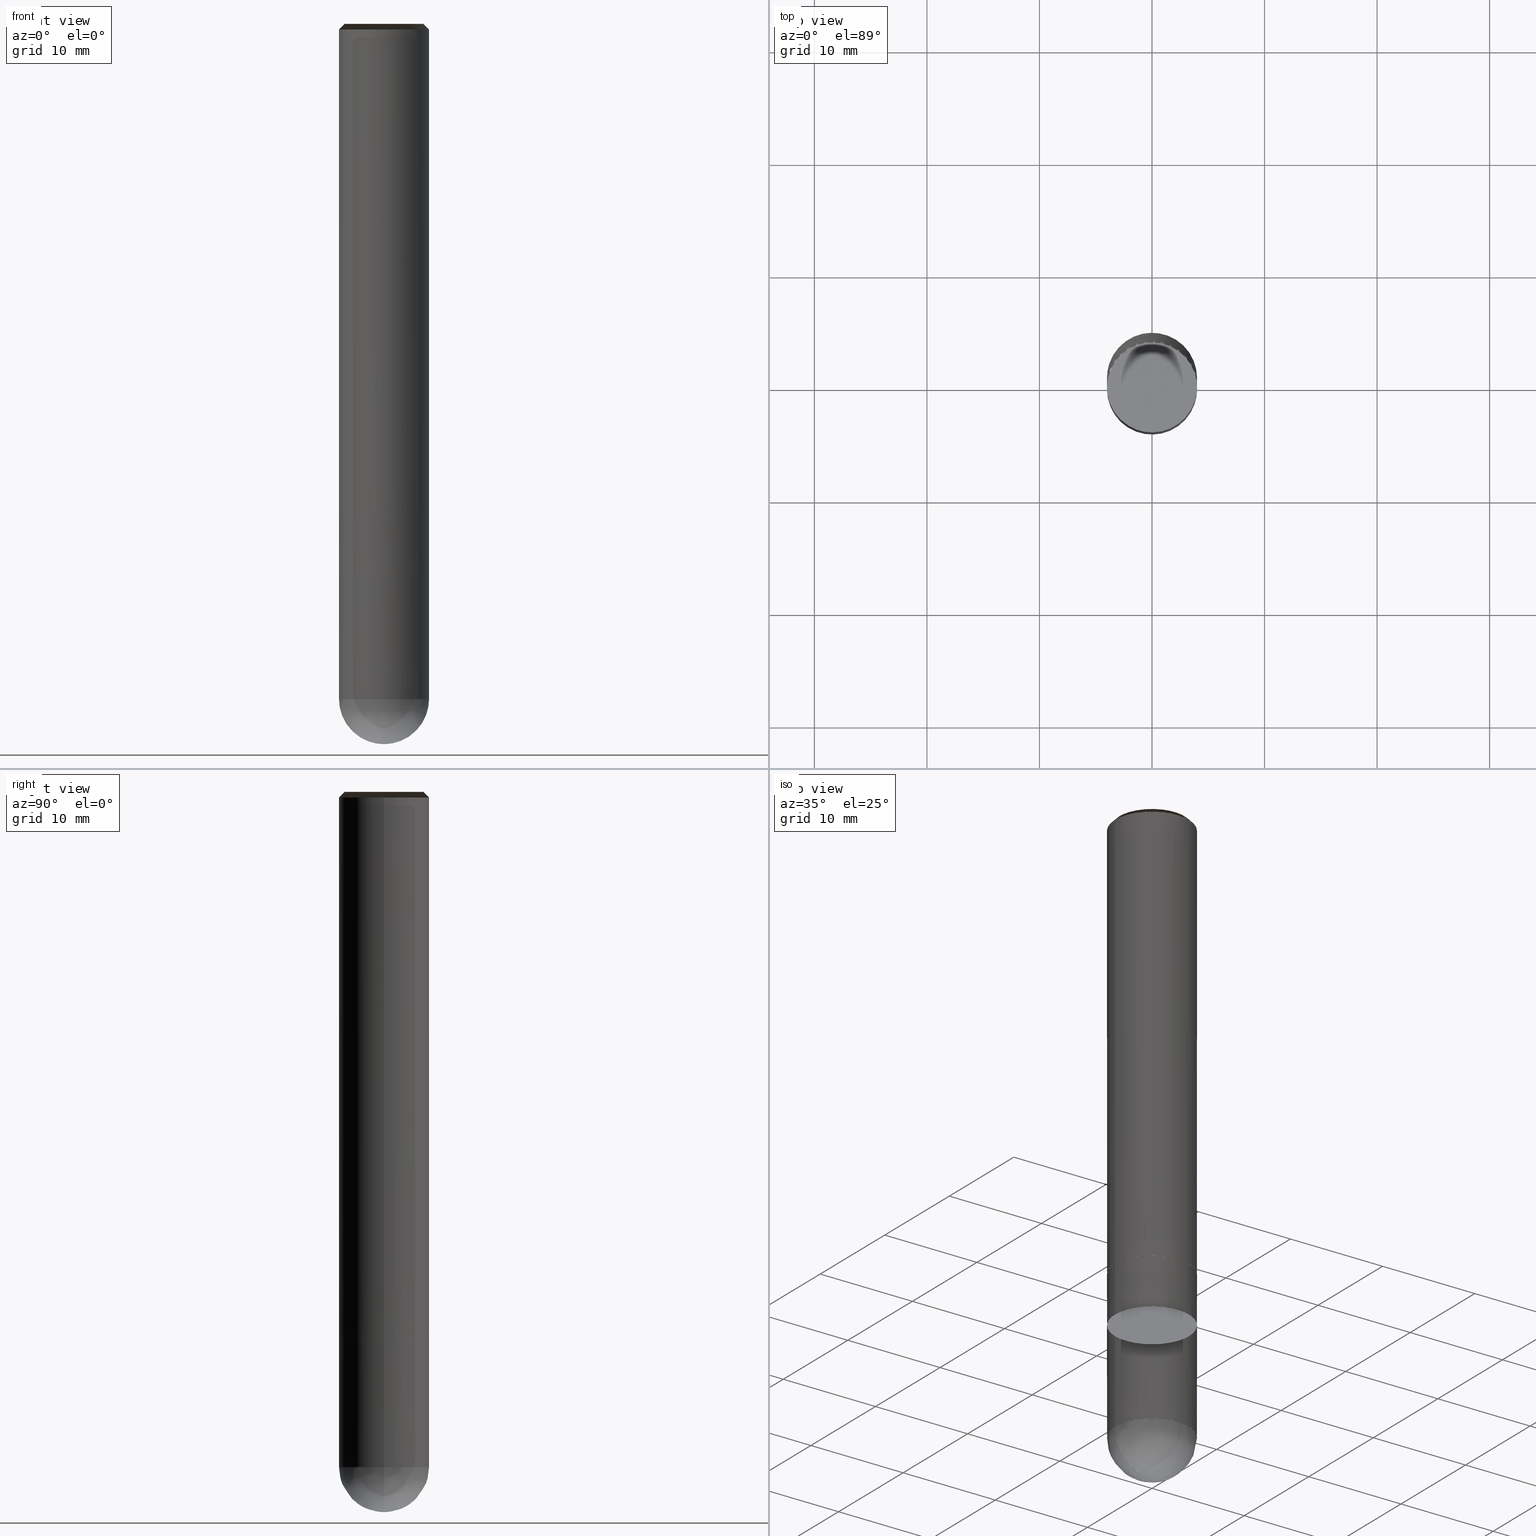
[diagram: canonical four-view strip — front | top / right | iso, engineering-drawing reading convention]
A machine part, canonical four-view strip (front | top / right | iso — engineering-drawing reading convention). The complete STEP part file that produces these views, byte-faithful:
ISO-10303-21;
HEADER;
/* Generated by ISBE GmbH (www.isbe.de) */
/* OPTION: using custom schema-name function */

FILE_DESCRIPTION(
/* description */ (''),
/* implementation_level */ '2;1');

FILE_NAME(
/*name*/ 'Drawing No  1240800   Issue 1',
/*time_stamp*/'2021-9-29T7:47:4',
/*author*/ ('ISBE GmbH'),
/*organization*/ ('ISBE GmbH'),
/*preprocessor_version*/ 'STEP IO v1.0',
/*originating_system*/ '',
/*authorisation*/ '');

FILE_SCHEMA (('AUTOMOTIVE_DESIGN'));
ENDSEC;

DATA;
#10=SHAPE_DEFINITION_REPRESENTATION(#11,#57);
#11=PRODUCT_DEFINITION_SHAPE('Document','',#13);
#12=PRODUCT_DEFINITION_CONTEXT('3D Mechanical Parts',#17,'design');
#13=PRODUCT_DEFINITION('A','First version',#14,#12);
#14=PRODUCT_DEFINITION_FORMATION_WITH_SPECIFIED_SOURCE('A','First version',#19,.MADE.);
#15=PRODUCT_RELATED_PRODUCT_CATEGORY('tool','tool',(#19));
#16=APPLICATION_PROTOCOL_DEFINITION('Draft International Standard', 'automotive_design',1999,#17);
#17=APPLICATION_CONTEXT('data for automotive mechanical design processes');
#18=PRODUCT_CONTEXT('3D Mechanical Parts',#17,'mechanical');
#19=PRODUCT('Document','Document','ISBE converted to STEP',(#18));
#20=(
LENGTH_UNIT()
NAMED_UNIT(*)
SI_UNIT(.MILLI.,.METRE.)
);
#21=(
NAMED_UNIT(*)
PLANE_ANGLE_UNIT()
SI_UNIT($,.RADIAN.)
);
#22=DIMENSIONAL_EXPONENTS(0.,0.,0.,0.,0.,0.,0.);
#23=PLANE_ANGLE_MEASURE_WITH_UNIT(PLANE_ANGLE_MEASURE(0.01745329252),#21);
#24=(
CONVERSION_BASED_UNIT('DEGREES',#23)
NAMED_UNIT(#22)
PLANE_ANGLE_UNIT()
);
#25=(
NAMED_UNIT(*)
SI_UNIT($,.STERADIAN.)
SOLID_ANGLE_UNIT()
);
#26=UNCERTAINTY_MEASURE_WITH_UNIT(LENGTH_MEASURE(0.001),#20, 'DISTANCE_ACCURACY_VALUE', 'Maximum model space distance between geometric entities at asserted connectivities');
#27=(
GEOMETRIC_REPRESENTATION_CONTEXT(3)
GLOBAL_UNCERTAINTY_ASSIGNED_CONTEXT((#26))
GLOBAL_UNIT_ASSIGNED_CONTEXT((#25,#24,#20))
REPRESENTATION_CONTEXT('ID1','3D')
);
#28=CARTESIAN_POINT('',(0.0,0.0,0.0));
#29=DIRECTION('',(1.0,0.0,0.0));
#30=DIRECTION('',(0.0,0.0,1.0));
#31=AXIS2_PLACEMENT_3D('',#28,#30,#29);
#32=CARTESIAN_POINT('',(0.0,0.0,0.0));
#33=DIRECTION('',(1.0,0.0,0.0));
#34=DIRECTION('',(0.0,0.0,1.0));
#35=AXIS2_PLACEMENT_3D('',#32,#34,#33);
#36=CARTESIAN_POINT('',(0.0,0.0,0.0));
#37=DIRECTION('',(1.0,0.0,0.0));
#38=DIRECTION('',(0.0,0.0,1.0));
#39=AXIS2_PLACEMENT_3D('',#36,#38,#37);
#40=CARTESIAN_POINT('',(0.0,0.0,0.0));
#41=DIRECTION('',(0.0,0.0,1.0));
#42=DIRECTION('',(1.0,0.0,0.0));
#43=AXIS2_PLACEMENT_3D('MCS',#40,#42,#41);
#44=CARTESIAN_POINT('',(0.0,0.0,44.0));
#45=DIRECTION('',(0.0,0.0,1.0));
#46=DIRECTION('',(1.0,0.0,0.0));
#47=AXIS2_PLACEMENT_3D('PCS',#44,#46,#45);
#48=CARTESIAN_POINT('',(0.0,0.0,-20.0));
#49=DIRECTION('',(0.0,0.0,1.0));
#50=DIRECTION('',(1.0,0.0,0.0));
#51=AXIS2_PLACEMENT_3D('CIP',#48,#50,#49);
#52=CARTESIAN_POINT('',(0.0,-4.0,-20.0));
#53=DIRECTION('',(0.0,0.0,1.0));
#54=DIRECTION('',(1.0,0.0,0.0));
#55=AXIS2_PLACEMENT_3D('CRP',#52,#54,#53);
#57=SHAPE_REPRESENTATION('Document',(#31,#35,#39,#43,#47,#51,#55),#27);
#58=DIRECTION('',(1.0,0.0,0.0));
#59=DIRECTION('',(0.0,0.0,1.0));
#60=CARTESIAN_POINT('',(-0.039997962759,-0.000403701762,-19.99935880373));
#61=CARTESIAN_POINT('',(-0.038743683084,-0.1222120494,-19.997944864803));
#62=CARTESIAN_POINT('',(-0.037165831756,-0.253571667116,-19.991781571001));
#63=CARTESIAN_POINT('',(-0.035157684236,-0.382479648231,-19.981516451797));
#64=CARTESIAN_POINT('',(-0.032479273838,-0.510476436732,-19.967160055293));
#65=CARTESIAN_POINT('',(-0.028907688184,-0.637744752608,-19.948727133658));
#66=CARTESIAN_POINT('',(-0.024226808236,-0.764250615305,-19.926236627964));
#67=CARTESIAN_POINT('',(-0.018226918876,-0.889897093044,-19.899711648727));
#68=CARTESIAN_POINT('',(-0.010705469941,-1.014561856136,-19.869179452156));
#69=CARTESIAN_POINT('',(-0.001468075145,-1.138109399672,-19.834671412147));
#70=CARTESIAN_POINT('',(0.009670433189,-1.260395774262,-19.796222988043));
#71=CARTESIAN_POINT('',(0.022884945764,-1.381270651358,-19.753873688199));
#72=CARTESIAN_POINT('',(0.038339034647,-1.500578327726,-19.707667029384));
#73=CARTESIAN_POINT('',(0.056183939184,-1.61815828734,-19.657650492063));
#74=CARTESIAN_POINT('',(0.07655758722,-1.733845587407,-19.60387547161));
#75=CARTESIAN_POINT('',(0.099583658325,-1.847471194367,-19.546397225492));
#76=CARTESIAN_POINT('',(0.125370695487,-1.958862333659,-19.485274816494));
#77=CARTESIAN_POINT('',(0.154011271704,-2.067842887228,-19.420571052021));
#78=CARTESIAN_POINT('',(0.185581218055,-2.174233857368,-19.352352419567));
#79=CARTESIAN_POINT('',(0.220138919905,-2.277853906767,-19.280689018388));
#80=CARTESIAN_POINT('',(0.25772468799,-2.378519979347,-19.205654487472));
#81=CARTESIAN_POINT('',(0.298360211109,-2.476048002922,-19.127325929872));
#82=CARTESIAN_POINT('',(0.342048097056,-2.570253672118,-19.045783833477));
#83=CARTESIAN_POINT('',(0.388771508244,-2.660953307955,-18.961111988301));
#84=CARTESIAN_POINT('',(0.438493898175,-2.747964788837,-18.873397400391));
#85=CARTESIAN_POINT('',(0.491158854468,-2.83110854618,-18.782730202414));
#86=CARTESIAN_POINT('',(0.546690053677,-2.910208616658,-18.689203561045));
#87=CARTESIAN_POINT('',(0.604991332442,-2.985093741901,-18.592913581231));
#88=CARTESIAN_POINT('',(0.665946878779,-3.055598505415,-18.493959207435));
#89=CARTESIAN_POINT('',(0.729421546436,-3.121564495673,-18.392442121965));
#90=CARTESIAN_POINT('',(0.795261294284,-3.182841483515,-18.288466640489));
#91=CARTESIAN_POINT('',(0.863293751629,-3.239288601433,-18.182139604842));
#92=CARTESIAN_POINT('',(0.933328909207,-3.290775511815,-18.073570273242));
#93=CARTESIAN_POINT('',(1.005159934396,-3.337183550956,-17.962870208016));
#94=CARTESIAN_POINT('',(1.078564107935,-3.378406835485,-17.850153160963));
#95=CARTESIAN_POINT('',(1.153303878147,-3.41435331791,-17.73553495647));
#96=CARTESIAN_POINT('',(1.229128027339,-3.444945778165,-17.61913337249));
#97=CARTESIAN_POINT('',(1.305772943785,-3.470122738472,-17.501068019517));
#98=CARTESIAN_POINT('',(1.38296399141,-3.489839289339,-17.381460217685));
#99=CARTESIAN_POINT('',(1.460416968096,-3.504067815303,-17.260432872094));
#100=CARTESIAN_POINT('',(1.537839642351,-3.512798609876,-17.138110346524));
#101=CARTESIAN_POINT('',(1.614933357084,-3.516040370241,-17.014618335638));
#102=CARTESIAN_POINT('',(1.691394688232,-3.51382056341,-16.890083735825));
#103=CARTESIAN_POINT('',(1.766917145225,-3.506185656904,-16.764634514805));
#104=CARTESIAN_POINT('',(1.841192899569,-3.493201208442,-16.638399580134));
#105=CARTESIAN_POINT('',(1.913914527368,-3.474951810636,-16.511508646738));
#106=CARTESIAN_POINT('',(1.984776751237,-3.45154088831,-16.384092103631));
#107=CARTESIAN_POINT('',(2.053478166941,-3.423090347695,-16.256280879923));
#108=CARTESIAN_POINT('',(2.119722940121,-3.389740078402,-16.128206310287));
#109=CARTESIAN_POINT('',(2.183222458693,-3.35164731078,-16.0));
#110=CARTESIAN_POINT('',(2.23107259574,-3.319987209695,-15.900621118012));
#111=CARTESIAN_POINT('',(2.278463689933,-3.287644021736,-15.801242236025));
#112=CARTESIAN_POINT('',(2.325385990561,-3.254624401509,-15.701863354037));
#113=CARTESIAN_POINT('',(2.371829843368,-3.220935142797,-15.60248447205));
#114=CARTESIAN_POINT('',(2.417785692539,-3.186583177159,-15.503105590062));
#115=CARTESIAN_POINT('',(2.463244082663,-3.151575572507,-15.403726708075));
#116=CARTESIAN_POINT('',(2.508195660684,-3.115919531651,-15.304347826087));
#117=CARTESIAN_POINT('',(2.552631177822,-3.079622390815,-15.204968944099));
#118=CARTESIAN_POINT('',(2.596541491475,-3.042691618131,-15.105590062112));
#119=CARTESIAN_POINT('',(2.639917567103,-3.005134812101,-15.006211180124));
#120=CARTESIAN_POINT('',(2.682750480086,-2.96695970003,-14.906832298137));
#121=CARTESIAN_POINT('',(2.725031417556,-2.928174136443,-14.807453416149));
#122=CARTESIAN_POINT('',(2.766751680218,-2.888786101463,-14.708074534161));
#123=CARTESIAN_POINT('',(2.807902684135,-2.848803699174,-14.608695652174));
#124=CARTESIAN_POINT('',(2.848475962492,-2.808235155948,-14.509316770186));
#125=CARTESIAN_POINT('',(2.888463167345,-2.767088818757,-14.409937888199));
#126=CARTESIAN_POINT('',(2.927856071331,-2.725373153454,-14.310559006211));
#127=CARTESIAN_POINT('',(2.966646569367,-2.683096743031,-14.211180124224));
#128=CARTESIAN_POINT('',(3.004826680313,-2.640268285852,-14.111801242236));
#129=CARTESIAN_POINT('',(3.042388548618,-2.596896593867,-14.012422360248));
#130=CARTESIAN_POINT('',(3.079324445931,-2.552990590795,-13.913043478261));
#131=CARTESIAN_POINT('',(3.115626772699,-2.508559310289,-13.813664596273));
#132=CARTESIAN_POINT('',(3.151288059723,-2.463611894079,-13.714285714286));
#133=CARTESIAN_POINT('',(3.186300969698,-2.418157590089,-13.614906832298));
#134=CARTESIAN_POINT('',(3.220658298723,-2.372205750535,-13.515527950311));
#135=CARTESIAN_POINT('',(3.254352977782,-2.325765830001,-13.416149068323));
#136=CARTESIAN_POINT('',(3.287378074202,-2.278847383494,-13.316770186335));
#137=CARTESIAN_POINT('',(3.319726793073,-2.231460064477,-13.217391304348));
#138=CARTESIAN_POINT('',(3.35139247865,-2.183613622885,-13.11801242236));
#139=CARTESIAN_POINT('',(3.382368615724,-2.135317903115,-13.018633540373));
#140=CARTESIAN_POINT('',(3.41264883096,-2.086582842004,-12.919254658385));
#141=CARTESIAN_POINT('',(3.442226894207,-2.037418466785,-12.819875776398));
#142=CARTESIAN_POINT('',(3.471096719784,-1.98783489302,-12.72049689441));
#143=CARTESIAN_POINT('',(3.499252367727,-1.937842322521,-12.621118012422));
#144=CARTESIAN_POINT('',(3.526688045017,-1.887451041254,-12.521739130435));
#145=CARTESIAN_POINT('',(3.553398106768,-1.836671417216,-12.422360248447));
#146=CARTESIAN_POINT('',(3.579377057387,-1.785513898308,-12.32298136646));
#147=CARTESIAN_POINT('',(3.60461955171,-1.733989010181,-12.223602484472));
#148=CARTESIAN_POINT('',(3.629120396098,-1.682107354073,-12.124223602484));
#149=CARTESIAN_POINT('',(3.652874549504,-1.629879604628,-12.024844720497));
#150=CARTESIAN_POINT('',(3.675877124517,-1.577316507697,-11.925465838509));
#151=CARTESIAN_POINT('',(3.698123388358,-1.52442887813,-11.826086956522));
#152=CARTESIAN_POINT('',(3.719608763864,-1.471227597548,-11.726708074534));
#153=CARTESIAN_POINT('',(3.74032883042,-1.417723612108,-11.627329192547));
#154=CARTESIAN_POINT('',(3.760279324877,-1.363927930245,-11.527950310559));
#155=CARTESIAN_POINT('',(3.779456142423,-1.309851620414,-11.428571428571));
#156=CARTESIAN_POINT('',(3.797855337431,-1.255505808807,-11.329192546584));
#157=CARTESIAN_POINT('',(3.815473124269,-1.200901677067,-11.229813664596));
#158=CARTESIAN_POINT('',(3.83230587808,-1.146050459986,-11.130434782609));
#159=CARTESIAN_POINT('',(3.848350135528,-1.090963443193,-11.031055900621));
#160=CARTESIAN_POINT('',(3.863602595508,-1.035651960835,-10.931677018634));
#161=CARTESIAN_POINT('',(3.878060119831,-0.98012739324,-10.832298136646));
#162=CARTESIAN_POINT('',(3.891719733861,-0.924401164579,-10.732919254658));
#163=CARTESIAN_POINT('',(3.904578627136,-0.868484740517,-10.633540372671));
#164=CARTESIAN_POINT('',(3.91663415394,-0.812389625849,-10.534161490683));
#165=CARTESIAN_POINT('',(3.927883833851,-0.756127362137,-10.434782608696));
#166=CARTESIAN_POINT('',(3.938325352248,-0.699709525332,-10.335403726708));
#167=CARTESIAN_POINT('',(3.947956560791,-0.643147723397,-10.23602484472));
#168=CARTESIAN_POINT('',(3.956775477859,-0.586453593913,-10.136645962733));
#169=CARTESIAN_POINT('',(3.964780288962,-0.52963880169,-10.037267080745));
#170=CARTESIAN_POINT('',(3.971969347112,-0.472715036363,-9.937888198758));
#171=CARTESIAN_POINT('',(3.97834117316,-0.415694009987,-9.83850931677));
#172=CARTESIAN_POINT('',(3.983894456105,-0.35858745463,-9.739130434783));
#173=CARTESIAN_POINT('',(3.988628053359,-0.301407119958,-9.639751552795));
#174=CARTESIAN_POINT('',(3.992540990985,-0.244164770816,-9.540372670807));
#175=CARTESIAN_POINT('',(3.995632463897,-0.186872184809,-9.44099378882));
#176=CARTESIAN_POINT('',(3.997901836025,-0.129541149878,-9.341614906832));
#177=CARTESIAN_POINT('',(3.999348640445,-0.072183461874,-9.242236024845));
#178=CARTESIAN_POINT('',(3.999972579479,-0.014810922134,-9.142857142857));
#179=CARTESIAN_POINT('',(3.999773524751,0.042564664951,-9.04347826087));
#180=CARTESIAN_POINT('',(3.998751517216,0.099931494363,-8.944099378882));
#181=CARTESIAN_POINT('',(3.996906767152,0.157277762884,-8.844720496894));
#182=CARTESIAN_POINT('',(3.994239654116,0.214591671529,-8.745341614907));
#183=CARTESIAN_POINT('',(3.990750726866,0.27186142797,-8.645962732919));
#184=CARTESIAN_POINT('',(3.986440703249,0.329075248963,-8.546583850932));
#185=CARTESIAN_POINT('',(3.981310470051,0.386221362772,-8.447204968944));
#186=CARTESIAN_POINT('',(3.975361082817,0.443288011593,-8.347826086957));
#187=CARTESIAN_POINT('',(3.968593765633,0.500263453972,-8.248447204969));
#188=CARTESIAN_POINT('',(3.961009910872,0.55713596722,-8.149068322981));
#189=CARTESIAN_POINT('',(3.952611078913,0.613893849826,-8.049689440994));
#190=CARTESIAN_POINT('',(3.943398997813,0.670525423863,-7.950310559006));
#191=CARTESIAN_POINT('',(3.933375562957,0.727019037395,-7.850931677019));
#192=CARTESIAN_POINT('',(3.922542836665,0.783363066867,-7.751552795031));
#193=CARTESIAN_POINT('',(3.910903047768,0.839545919506,-7.652173913043));
#194=CARTESIAN_POINT('',(3.898458591152,0.895556035696,-7.552795031056));
#195=CARTESIAN_POINT('',(3.885212027262,0.951381891366,-7.453416149068));
#196=CARTESIAN_POINT('',(3.871166081576,1.007012000353,-7.354037267081));
#197=CARTESIAN_POINT('',(3.856323644046,1.062434916772,-7.254658385093));
#198=CARTESIAN_POINT('',(3.8406877685,1.117639237364,-7.155279503106));
#199=CARTESIAN_POINT('',(3.824261672018,1.17261360385,-7.055900621118));
#200=CARTESIAN_POINT('',(3.807048734267,1.227346705261,-6.95652173913));
#201=CARTESIAN_POINT('',(3.789052496806,1.281827280271,-6.857142857143));
#202=CARTESIAN_POINT('',(3.770276662358,1.336044119509,-6.757763975155));
#203=CARTESIAN_POINT('',(3.750725094049,1.389986067868,-6.658385093168));
#204=CARTESIAN_POINT('',(3.730401814611,1.443642026801,-6.55900621118));
#205=CARTESIAN_POINT('',(3.709311005555,1.497000956603,-6.459627329193));
#206=CARTESIAN_POINT('',(3.687457006312,1.55005187868,-6.360248447205));
#207=CARTESIAN_POINT('',(3.66484431334,1.602783877814,-6.260869565217));
#208=CARTESIAN_POINT('',(3.641477579196,1.655186104404,-6.16149068323));
#209=CARTESIAN_POINT('',(3.617361611583,1.7072477767,-6.062111801242));
#210=CARTESIAN_POINT('',(3.592501372357,1.75895818302,-5.962732919255));
#211=CARTESIAN_POINT('',(3.566901976509,1.810306683956,-5.863354037267));
#212=CARTESIAN_POINT('',(3.540568691111,1.861282714561,-5.76397515528));
#213=CARTESIAN_POINT('',(3.513506934232,1.911875786526,-5.664596273292));
#214=CARTESIAN_POINT('',(3.485722273825,1.962075490332,-5.565217391304));
#215=CARTESIAN_POINT('',(3.457220426579,2.011871497398,-5.465838509317));
#216=CARTESIAN_POINT('',(3.428007256746,2.061253562203,-5.366459627329));
#217=CARTESIAN_POINT('',(3.398088774931,2.110211524395,-5.267080745342));
#218=CARTESIAN_POINT('',(3.367471136856,2.158735310881,-5.167701863354));
#219=CARTESIAN_POINT('',(3.336160642096,2.206814937897,-5.068322981366));
#220=CARTESIAN_POINT('',(0.039997962759,0.000403701762,-19.99935880373));
#221=CARTESIAN_POINT('',(0.038743683084,0.1222120494,-19.997944864803));
#222=CARTESIAN_POINT('',(0.037165831756,0.253571667116,-19.991781571001));
#223=CARTESIAN_POINT('',(0.035157684236,0.382479648231,-19.981516451797));
#224=CARTESIAN_POINT('',(0.032479273838,0.510476436732,-19.967160055293));
#225=CARTESIAN_POINT('',(0.028907688184,0.637744752608,-19.948727133658));
#226=CARTESIAN_POINT('',(0.024226808236,0.764250615305,-19.926236627964));
#227=CARTESIAN_POINT('',(0.018226918876,0.889897093044,-19.899711648727));
#228=CARTESIAN_POINT('',(0.010705469941,1.014561856136,-19.869179452156));
#229=CARTESIAN_POINT('',(0.001468075145,1.138109399672,-19.834671412147));
#230=CARTESIAN_POINT('',(-0.009670433189,1.260395774262,-19.796222988043));
#231=CARTESIAN_POINT('',(-0.022884945764,1.381270651358,-19.753873688199));
#232=CARTESIAN_POINT('',(-0.038339034647,1.500578327726,-19.707667029384));
#233=CARTESIAN_POINT('',(-0.056183939184,1.61815828734,-19.657650492063));
#234=CARTESIAN_POINT('',(-0.07655758722,1.733845587407,-19.60387547161));
#235=CARTESIAN_POINT('',(-0.099583658325,1.847471194367,-19.546397225492));
#236=CARTESIAN_POINT('',(-0.125370695487,1.958862333659,-19.485274816494));
#237=CARTESIAN_POINT('',(-0.154011271704,2.067842887228,-19.420571052021));
#238=CARTESIAN_POINT('',(-0.185581218055,2.174233857368,-19.352352419567));
#239=CARTESIAN_POINT('',(-0.220138919905,2.277853906767,-19.280689018388));
#240=CARTESIAN_POINT('',(-0.25772468799,2.378519979347,-19.205654487472));
#241=CARTESIAN_POINT('',(-0.298360211109,2.476048002922,-19.127325929872));
#242=CARTESIAN_POINT('',(-0.342048097056,2.570253672118,-19.045783833477));
#243=CARTESIAN_POINT('',(-0.388771508244,2.660953307955,-18.961111988301));
#244=CARTESIAN_POINT('',(-0.438493898175,2.747964788837,-18.873397400391));
#245=CARTESIAN_POINT('',(-0.491158854468,2.83110854618,-18.782730202414));
#246=CARTESIAN_POINT('',(-0.546690053677,2.910208616658,-18.689203561045));
#247=CARTESIAN_POINT('',(-0.604991332442,2.985093741901,-18.592913581231));
#248=CARTESIAN_POINT('',(-0.665946878779,3.055598505415,-18.493959207435));
#249=CARTESIAN_POINT('',(-0.729421546436,3.121564495673,-18.392442121965));
#250=CARTESIAN_POINT('',(-0.795261294284,3.182841483515,-18.288466640489));
#251=CARTESIAN_POINT('',(-0.863293751629,3.239288601433,-18.182139604842));
#252=CARTESIAN_POINT('',(-0.933328909207,3.290775511815,-18.073570273242));
#253=CARTESIAN_POINT('',(-1.005159934396,3.337183550956,-17.962870208016));
#254=CARTESIAN_POINT('',(-1.078564107935,3.378406835485,-17.850153160963));
#255=CARTESIAN_POINT('',(-1.153303878147,3.41435331791,-17.73553495647));
#256=CARTESIAN_POINT('',(-1.229128027339,3.444945778165,-17.61913337249));
#257=CARTESIAN_POINT('',(-1.305772943785,3.470122738472,-17.501068019517));
#258=CARTESIAN_POINT('',(-1.38296399141,3.489839289339,-17.381460217685));
#259=CARTESIAN_POINT('',(-1.460416968096,3.504067815303,-17.260432872094));
#260=CARTESIAN_POINT('',(-1.537839642351,3.512798609876,-17.138110346524));
#261=CARTESIAN_POINT('',(-1.614933357084,3.516040370241,-17.014618335638));
#262=CARTESIAN_POINT('',(-1.691394688232,3.51382056341,-16.890083735825));
#263=CARTESIAN_POINT('',(-1.766917145225,3.506185656904,-16.764634514805));
#264=CARTESIAN_POINT('',(-1.841192899569,3.493201208442,-16.638399580134));
#265=CARTESIAN_POINT('',(-1.913914527368,3.474951810636,-16.511508646738));
#266=CARTESIAN_POINT('',(-1.984776751237,3.45154088831,-16.384092103631));
#267=CARTESIAN_POINT('',(-2.053478166941,3.423090347695,-16.256280879923));
#268=CARTESIAN_POINT('',(-2.119722940121,3.389740078402,-16.128206310287));
#269=CARTESIAN_POINT('',(-2.183222458693,3.35164731078,-16.0));
#270=CARTESIAN_POINT('',(-2.23107259574,3.319987209695,-15.900621118012));
#271=CARTESIAN_POINT('',(-2.278463689933,3.287644021736,-15.801242236025));
#272=CARTESIAN_POINT('',(-2.325385990561,3.25462440151,-15.701863354037));
#273=CARTESIAN_POINT('',(-2.371829843368,3.220935142797,-15.60248447205));
#274=CARTESIAN_POINT('',(-2.417785692539,3.186583177159,-15.503105590062));
#275=CARTESIAN_POINT('',(-2.463244082663,3.151575572507,-15.403726708075));
#276=CARTESIAN_POINT('',(-2.508195660684,3.115919531651,-15.304347826087));
#277=CARTESIAN_POINT('',(-2.552631177822,3.079622390815,-15.204968944099));
#278=CARTESIAN_POINT('',(-2.596541491475,3.042691618132,-15.105590062112));
#279=CARTESIAN_POINT('',(-2.639917567103,3.005134812101,-15.006211180124));
#280=CARTESIAN_POINT('',(-2.682750480086,2.96695970003,-14.906832298137));
#281=CARTESIAN_POINT('',(-2.725031417556,2.928174136443,-14.807453416149));
#282=CARTESIAN_POINT('',(-2.766751680218,2.888786101463,-14.708074534161));
#283=CARTESIAN_POINT('',(-2.807902684135,2.848803699174,-14.608695652174));
#284=CARTESIAN_POINT('',(-2.848475962492,2.808235155948,-14.509316770186));
#285=CARTESIAN_POINT('',(-2.888463167345,2.767088818757,-14.409937888199));
#286=CARTESIAN_POINT('',(-2.927856071331,2.725373153454,-14.310559006211));
#287=CARTESIAN_POINT('',(-2.966646569367,2.683096743031,-14.211180124224));
#288=CARTESIAN_POINT('',(-3.004826680313,2.640268285852,-14.111801242236));
#289=CARTESIAN_POINT('',(-3.042388548618,2.596896593867,-14.012422360248));
#290=CARTESIAN_POINT('',(-3.079324445931,2.552990590795,-13.913043478261));
#291=CARTESIAN_POINT('',(-3.115626772699,2.508559310289,-13.813664596273));
#292=CARTESIAN_POINT('',(-3.151288059723,2.463611894079,-13.714285714286));
#293=CARTESIAN_POINT('',(-3.186300969698,2.418157590089,-13.614906832298));
#294=CARTESIAN_POINT('',(-3.220658298723,2.372205750535,-13.515527950311));
#295=CARTESIAN_POINT('',(-3.254352977782,2.325765830001,-13.416149068323));
#296=CARTESIAN_POINT('',(-3.287378074202,2.278847383494,-13.316770186335));
#297=CARTESIAN_POINT('',(-3.319726793073,2.231460064477,-13.217391304348));
#298=CARTESIAN_POINT('',(-3.35139247865,2.183613622885,-13.11801242236));
#299=CARTESIAN_POINT('',(-3.382368615724,2.135317903115,-13.018633540373));
#300=CARTESIAN_POINT('',(-3.41264883096,2.086582842004,-12.919254658385));
#301=CARTESIAN_POINT('',(-3.442226894207,2.037418466785,-12.819875776398));
#302=CARTESIAN_POINT('',(-3.471096719784,1.98783489302,-12.72049689441));
#303=CARTESIAN_POINT('',(-3.499252367727,1.937842322521,-12.621118012422));
#304=CARTESIAN_POINT('',(-3.526688045017,1.887451041254,-12.521739130435));
#305=CARTESIAN_POINT('',(-3.553398106768,1.836671417216,-12.422360248447));
#306=CARTESIAN_POINT('',(-3.579377057387,1.785513898308,-12.32298136646));
#307=CARTESIAN_POINT('',(-3.60461955171,1.733989010181,-12.223602484472));
#308=CARTESIAN_POINT('',(-3.629120396098,1.682107354073,-12.124223602484));
#309=CARTESIAN_POINT('',(-3.652874549504,1.629879604628,-12.024844720497));
#310=CARTESIAN_POINT('',(-3.675877124517,1.577316507697,-11.925465838509));
#311=CARTESIAN_POINT('',(-3.698123388358,1.52442887813,-11.826086956522));
#312=CARTESIAN_POINT('',(-3.719608763864,1.471227597548,-11.726708074534));
#313=CARTESIAN_POINT('',(-3.74032883042,1.417723612108,-11.627329192547));
#314=CARTESIAN_POINT('',(-3.760279324877,1.363927930245,-11.527950310559));
#315=CARTESIAN_POINT('',(-3.779456142423,1.309851620414,-11.428571428571));
#316=CARTESIAN_POINT('',(-3.797855337431,1.255505808807,-11.329192546584));
#317=CARTESIAN_POINT('',(-3.815473124269,1.200901677067,-11.229813664596));
#318=CARTESIAN_POINT('',(-3.83230587808,1.146050459986,-11.130434782609));
#319=CARTESIAN_POINT('',(-3.848350135528,1.090963443193,-11.031055900621));
#320=CARTESIAN_POINT('',(-3.863602595508,1.035651960835,-10.931677018634));
#321=CARTESIAN_POINT('',(-3.878060119831,0.98012739324,-10.832298136646));
#322=CARTESIAN_POINT('',(-3.891719733861,0.924401164579,-10.732919254658));
#323=CARTESIAN_POINT('',(-3.904578627136,0.868484740517,-10.633540372671));
#324=CARTESIAN_POINT('',(-3.91663415394,0.812389625849,-10.534161490683));
#325=CARTESIAN_POINT('',(-3.927883833851,0.756127362137,-10.434782608696));
#326=CARTESIAN_POINT('',(-3.938325352248,0.699709525332,-10.335403726708));
#327=CARTESIAN_POINT('',(-3.947956560791,0.643147723397,-10.23602484472));
#328=CARTESIAN_POINT('',(-3.956775477859,0.586453593913,-10.136645962733));
#329=CARTESIAN_POINT('',(-3.964780288962,0.52963880169,-10.037267080745));
#330=CARTESIAN_POINT('',(-3.971969347112,0.472715036363,-9.937888198758));
#331=CARTESIAN_POINT('',(-3.97834117316,0.415694009987,-9.83850931677));
#332=CARTESIAN_POINT('',(-3.983894456105,0.35858745463,-9.739130434783));
#333=CARTESIAN_POINT('',(-3.988628053359,0.301407119958,-9.639751552795));
#334=CARTESIAN_POINT('',(-3.992540990985,0.244164770816,-9.540372670807));
#335=CARTESIAN_POINT('',(-3.995632463897,0.186872184809,-9.44099378882));
#336=CARTESIAN_POINT('',(-3.997901836025,0.129541149878,-9.341614906832));
#337=CARTESIAN_POINT('',(-3.999348640445,0.072183461874,-9.242236024845));
#338=CARTESIAN_POINT('',(-3.999972579479,0.014810922134,-9.142857142857));
#339=CARTESIAN_POINT('',(-3.999773524751,-0.042564664951,-9.04347826087));
#340=CARTESIAN_POINT('',(-3.998751517216,-0.099931494363,-8.944099378882));
#341=CARTESIAN_POINT('',(-3.996906767152,-0.157277762884,-8.844720496894));
#342=CARTESIAN_POINT('',(-3.994239654116,-0.214591671529,-8.745341614907));
#343=CARTESIAN_POINT('',(-3.990750726866,-0.27186142797,-8.645962732919));
#344=CARTESIAN_POINT('',(-3.986440703249,-0.329075248963,-8.546583850932));
#345=CARTESIAN_POINT('',(-3.981310470051,-0.386221362772,-8.447204968944));
#346=CARTESIAN_POINT('',(-3.975361082817,-0.443288011593,-8.347826086957));
#347=CARTESIAN_POINT('',(-3.968593765633,-0.500263453972,-8.248447204969));
#348=CARTESIAN_POINT('',(-3.961009910872,-0.55713596722,-8.149068322981));
#349=CARTESIAN_POINT('',(-3.952611078913,-0.613893849826,-8.049689440994));
#350=CARTESIAN_POINT('',(-3.943398997813,-0.670525423863,-7.950310559006));
#351=CARTESIAN_POINT('',(-3.933375562957,-0.727019037394,-7.850931677019));
#352=CARTESIAN_POINT('',(-3.922542836665,-0.783363066867,-7.751552795031));
#353=CARTESIAN_POINT('',(-3.910903047768,-0.839545919506,-7.652173913043));
#354=CARTESIAN_POINT('',(-3.898458591152,-0.895556035696,-7.552795031056));
#355=CARTESIAN_POINT('',(-3.885212027262,-0.951381891366,-7.453416149068));
#356=CARTESIAN_POINT('',(-3.871166081576,-1.007012000353,-7.354037267081));
#357=CARTESIAN_POINT('',(-3.856323644046,-1.062434916772,-7.254658385093));
#358=CARTESIAN_POINT('',(-3.8406877685,-1.117639237364,-7.155279503106));
#359=CARTESIAN_POINT('',(-3.824261672018,-1.17261360385,-7.055900621118));
#360=CARTESIAN_POINT('',(-3.807048734267,-1.227346705261,-6.95652173913));
#361=CARTESIAN_POINT('',(-3.789052496806,-1.281827280271,-6.857142857143));
#362=CARTESIAN_POINT('',(-3.770276662359,-1.336044119509,-6.757763975155));
#363=CARTESIAN_POINT('',(-3.750725094049,-1.389986067868,-6.658385093168));
#364=CARTESIAN_POINT('',(-3.730401814611,-1.443642026801,-6.55900621118));
#365=CARTESIAN_POINT('',(-3.709311005555,-1.497000956602,-6.459627329193));
#366=CARTESIAN_POINT('',(-3.687457006312,-1.55005187868,-6.360248447205));
#367=CARTESIAN_POINT('',(-3.66484431334,-1.602783877814,-6.260869565217));
#368=CARTESIAN_POINT('',(-3.641477579196,-1.655186104404,-6.16149068323));
#369=CARTESIAN_POINT('',(-3.617361611583,-1.7072477767,-6.062111801242));
#370=CARTESIAN_POINT('',(-3.592501372357,-1.75895818302,-5.962732919255));
#371=CARTESIAN_POINT('',(-3.566901976509,-1.810306683956,-5.863354037267));
#372=CARTESIAN_POINT('',(-3.540568691111,-1.861282714561,-5.76397515528));
#373=CARTESIAN_POINT('',(-3.513506934232,-1.911875786526,-5.664596273292));
#374=CARTESIAN_POINT('',(-3.485722273825,-1.962075490332,-5.565217391304));
#375=CARTESIAN_POINT('',(-3.457220426579,-2.011871497398,-5.465838509317));
#376=CARTESIAN_POINT('',(-3.428007256746,-2.061253562203,-5.366459627329));
#377=CARTESIAN_POINT('',(-3.398088774931,-2.110211524395,-5.267080745342));
#378=CARTESIAN_POINT('',(-3.367471136856,-2.158735310881,-5.167701863354));
#379=CARTESIAN_POINT('',(-3.336160642096,-2.206814937897,-5.068322981366));
#380=CARTESIAN_POINT('',(0.0,0.0,-20.0));
#381=CARTESIAN_POINT('',(4.0,0.0,-20.0));
#382=CARTESIAN_POINT('',(4.0,4.0,-20.0));
#383=CARTESIAN_POINT('',(0.0,4.0,-20.0));
#384=CARTESIAN_POINT('',(-4.0,4.0,-20.0));
#385=CARTESIAN_POINT('',(-4.0,0.0,-20.0));
#386=CARTESIAN_POINT('',(4.0,0.0,-16.0));
#387=CARTESIAN_POINT('',(4.0,4.0,-16.0));
#388=CARTESIAN_POINT('',(0.0,4.0,-16.0));
#389=CARTESIAN_POINT('',(-4.0,4.0,-16.0));
#390=CARTESIAN_POINT('',(-4.0,0.0,-16.0));
#391=CARTESIAN_POINT('',(4.0,0.0,-5.0));
#392=CARTESIAN_POINT('',(4.0,4.0,-5.0));
#393=CARTESIAN_POINT('',(0.0,4.0,-5.0));
#394=CARTESIAN_POINT('',(-4.0,4.0,-5.0));
#395=CARTESIAN_POINT('',(-4.0,0.0,-5.0));
#396=CARTESIAN_POINT('',(0.0,0.0,-5.0));
#397=CARTESIAN_POINT('',(-4.0,-4.0,-20.0));
#398=CARTESIAN_POINT('',(0.0,-4.0,-20.0));
#399=CARTESIAN_POINT('',(4.0,-4.0,-20.0));
#400=CARTESIAN_POINT('',(-4.0,-4.0,-16.0));
#401=CARTESIAN_POINT('',(0.0,-4.0,-16.0));
#402=CARTESIAN_POINT('',(4.0,-4.0,-16.0));
#403=CARTESIAN_POINT('',(-4.0,-4.0,-5.0));
#404=CARTESIAN_POINT('',(0.0,-4.0,-5.0));
#405=CARTESIAN_POINT('',(4.0,-4.0,-5.0));
#406=CARTESIAN_POINT('',(4.0,0.0,0.0));
#407=CARTESIAN_POINT('',(4.0,4.0,0.0));
#408=CARTESIAN_POINT('',(0.0,4.0,0.0));
#409=CARTESIAN_POINT('',(-4.0,4.0,0.0));
#410=CARTESIAN_POINT('',(-4.0,0.0,0.0));
#411=CARTESIAN_POINT('',(4.0,0.0,43.5));
#412=CARTESIAN_POINT('',(4.0,4.0,43.5));
#413=CARTESIAN_POINT('',(0.0,4.0,43.5));
#414=CARTESIAN_POINT('',(-4.0,4.0,43.5));
#415=CARTESIAN_POINT('',(-4.0,0.0,43.5));
#416=CARTESIAN_POINT('',(3.5,0.0,44.0));
#417=CARTESIAN_POINT('',(3.5,3.5,44.0));
#418=CARTESIAN_POINT('',(0.0,3.5,44.0));
#419=CARTESIAN_POINT('',(-3.5,3.5,44.0));
#420=CARTESIAN_POINT('',(-3.5,0.0,44.0));
#421=CARTESIAN_POINT('',(0.0,0.0,44.0));
#422=CARTESIAN_POINT('',(-4.0,-4.0,0.0));
#423=CARTESIAN_POINT('',(0.0,-4.0,0.0));
#424=CARTESIAN_POINT('',(4.0,-4.0,0.0));
#425=CARTESIAN_POINT('',(-4.0,-4.0,43.5));
#426=CARTESIAN_POINT('',(0.0,-4.0,43.5));
#427=CARTESIAN_POINT('',(4.0,-4.0,43.5));
#428=CARTESIAN_POINT('',(-3.5,-3.5,44.0));
#429=CARTESIAN_POINT('',(0.0,-3.5,44.0));
#430=CARTESIAN_POINT('',(3.5,-3.5,44.0));
#431=(
BOUNDED_CURVE()
B_SPLINE_CURVE(1,(#60,#61,#62,#63,#64,#65,#66,#67,#68,#69,#70,#71,#72,#73,#74,#75,#76,#77,#78,#79,#80,#81,#82,#83,#84,#85,#86,#87,#88,#89,#90,#91,#92,#93,#94,#95,#96,#97,#98,#99,#100,#101,#102,#103,#104,#105,#106,#107,#108,#109,#110,#111,#112,#113,#114,#115,#116,#117,#118,#119,#120,#121,#122,#123,#124,#125,#126,#127,#128,#129,#130,#131,#132,#133,#134,#135,#136,#137,#138,#139,#140,#141,#142,#143,#144,#145,#146,#147,#148,#149,#150,#151,#152,#153,#154,#155,#156,#157,#158,#159,#160,#161,#162,#163,#164,#165,#166,#167,#168,#169,#170,#171,#172,#173,#174,#175,#176,#177,#178,#179,#180,#181,#182,#183,#184,#185,#186,#187,#188,#189,#190,#191,#192,#193,#194,#195,#196,#197,#198,#199,#200,#201,#202,#203,#204,#205,#206,#207,#208,#209,#210,#211,#212,#213,#214,#215,#216,#217,#218,#219),.UNSPECIFIED.,.F.,.F.)
B_SPLINE_CURVE_WITH_KNOTS((2,1,1,1,1,1,1,1,1,1,1,1,1,1,1,1,1,1,1,1,1,1,1,1,1,1,1,1,1,1,1,1,1,1,1,1,1,1,1,1,1,1,1,1,1,1,1,1,1,1,1,1,1,1,1,1,1,1,1,1,1,1,1,1,1,1,1,1,1,1,1,1,1,1,1,1,1,1,1,1,1,1,1,1,1,1,1,1,1,1,1,1,1,1,1,1,1,1,1,1,1,1,1,1,1,1,1,1,1,1,1,1,1,1,1,1,1,1,1,1,1,1,1,1,1,1,1,1,1,1,1,1,1,1,1,1,1,1,1,1,1,1,1,1,1,1,1,1,1,1,1,1,1,1,1,1,1,1,1,2),
(0.0,0.006316056811,0.013134533175,0.019839883626,0.026519082924,0.033188877487,0.039854986214,0.046520115764,0.053185946977,0.059853802103,0.066524916821,0.073200566513,0.079882129359,0.086571117786,0.093269191732,0.099978160002,0.106699972963,0.113436708417,0.120190551862,0.126963772092,0.13375869293,0.14057766188,0.147423016471,0.154297049088,0.161201971049,0.168139876735,0.175112708493,0.182122223032,0.189169959954,0.19625721298,0.203385004376,0.210554062952,0.217764805964,0.225017325097,0.23231137669,0.239646376216,0.247021396993,0.254435173045,0.261886105942,0.269372275443,0.276891453706,0.284441122805,0.292018495291,0.299620537492,0.307243995262,0.314885421881,0.322541207784,0.330207611831,0.337880793799,0.345556847804,0.351506331006,0.357455814207,0.363405297409,0.369354780611,0.375304263813,0.381253747014,0.387203230216,0.393152713418,0.39910219662,0.405051679822,0.411001163023,0.416950646225,0.422900129427,0.428849612629,0.434799095831,0.440748579032,0.446698062234,0.452647545436,0.458597028638,0.464546511839,0.470495995041,0.476445478243,0.482394961445,0.488344444647,0.494293927848,0.50024341105,0.506192894252,0.512142377454,0.518091860656,0.524041343857,0.529990827059,0.535940310261,0.541889793463,0.547839276664,0.553788759866,0.559738243068,0.56568772627,0.571637209472,0.577586692673,0.583536175875,0.589485659077,0.595435142279,0.60138462548,0.607334108682,0.613283591884,0.619233075086,0.625182558288,0.631132041489,0.637081524691,0.643031007893,0.648980491095,0.654929974297,0.660879457498,0.6668289407,0.672778423902,0.678727907104,0.684677390305,0.690626873507,0.696576356709,0.702525839911,0.708475323113,0.714424806314,0.720374289516,0.726323772718,0.73227325592,0.738222739122,0.744172222323,0.750121705525,0.756071188727,0.762020671929,0.76797015513,0.773919638332,0.779869121534,0.785818604736,0.791768087938,0.797717571139,0.803667054341,0.809616537543,0.815566020745,0.821515503946,0.827464987148,0.83341447035,0.839363953552,0.845313436754,0.851262919955,0.857212403157,0.863161886359,0.869111369561,0.875060852763,0.881010335964,0.886959819166,0.892909302368,0.89885878557,0.904808268771,0.910757751973,0.916707235175,0.922656718377,0.928606201579,0.93455568478,0.940505167982,0.946454651184,0.952404134386,0.958353617588,0.964303100789,0.970252583991,0.976202067193,0.982151550395,0.988101033596,0.994050516798,1.0),.UNSPECIFIED.)
CURVE()
GEOMETRIC_REPRESENTATION_ITEM()
RATIONAL_B_SPLINE_CURVE((1.0,1.0,1.0,1.0,1.0,1.0,1.0,1.0,1.0,1.0,1.0,1.0,1.0,1.0,1.0,1.0,1.0,1.0,1.0,1.0,1.0,1.0,1.0,1.0,1.0,1.0,1.0,1.0,1.0,1.0,1.0,1.0,1.0,1.0,1.0,1.0,1.0,1.0,1.0,1.0,1.0,1.0,1.0,1.0,1.0,1.0,1.0,1.0,1.0,1.0,1.0,1.0,1.0,1.0,1.0,1.0,1.0,1.0,1.0,1.0,1.0,1.0,1.0,1.0,1.0,1.0,1.0,1.0,1.0,1.0,1.0,1.0,1.0,1.0,1.0,1.0,1.0,1.0,1.0,1.0,1.0,1.0,1.0,1.0,1.0,1.0,1.0,1.0,1.0,1.0,1.0,1.0,1.0,1.0,1.0,1.0,1.0,1.0,1.0,1.0,1.0,1.0,1.0,1.0,1.0,1.0,1.0,1.0,1.0,1.0,1.0,1.0,1.0,1.0,1.0,1.0,1.0,1.0,1.0,1.0,1.0,1.0,1.0,1.0,1.0,1.0,1.0,1.0,1.0,1.0,1.0,1.0,1.0,1.0,1.0,1.0,1.0,1.0,1.0,1.0,1.0,1.0,1.0,1.0,1.0,1.0,1.0,1.0,1.0,1.0,1.0,1.0,1.0,1.0,1.0,1.0,1.0,1.0,1.0,1.0))
REPRESENTATION_ITEM('')
);
#432=(
BOUNDED_CURVE()
B_SPLINE_CURVE(1,(#220,#221,#222,#223,#224,#225,#226,#227,#228,#229,#230,#231,#232,#233,#234,#235,#236,#237,#238,#239,#240,#241,#242,#243,#244,#245,#246,#247,#248,#249,#250,#251,#252,#253,#254,#255,#256,#257,#258,#259,#260,#261,#262,#263,#264,#265,#266,#267,#268,#269,#270,#271,#272,#273,#274,#275,#276,#277,#278,#279,#280,#281,#282,#283,#284,#285,#286,#287,#288,#289,#290,#291,#292,#293,#294,#295,#296,#297,#298,#299,#300,#301,#302,#303,#304,#305,#306,#307,#308,#309,#310,#311,#312,#313,#314,#315,#316,#317,#318,#319,#320,#321,#322,#323,#324,#325,#326,#327,#328,#329,#330,#331,#332,#333,#334,#335,#336,#337,#338,#339,#340,#341,#342,#343,#344,#345,#346,#347,#348,#349,#350,#351,#352,#353,#354,#355,#356,#357,#358,#359,#360,#361,#362,#363,#364,#365,#366,#367,#368,#369,#370,#371,#372,#373,#374,#375,#376,#377,#378,#379),.UNSPECIFIED.,.F.,.F.)
B_SPLINE_CURVE_WITH_KNOTS((2,1,1,1,1,1,1,1,1,1,1,1,1,1,1,1,1,1,1,1,1,1,1,1,1,1,1,1,1,1,1,1,1,1,1,1,1,1,1,1,1,1,1,1,1,1,1,1,1,1,1,1,1,1,1,1,1,1,1,1,1,1,1,1,1,1,1,1,1,1,1,1,1,1,1,1,1,1,1,1,1,1,1,1,1,1,1,1,1,1,1,1,1,1,1,1,1,1,1,1,1,1,1,1,1,1,1,1,1,1,1,1,1,1,1,1,1,1,1,1,1,1,1,1,1,1,1,1,1,1,1,1,1,1,1,1,1,1,1,1,1,1,1,1,1,1,1,1,1,1,1,1,1,1,1,1,1,1,1,2),
(0.0,0.006316056811,0.013134533175,0.019839883626,0.026519082924,0.033188877487,0.039854986214,0.046520115764,0.053185946977,0.059853802103,0.066524916821,0.073200566513,0.079882129359,0.086571117786,0.093269191732,0.099978160002,0.106699972963,0.113436708417,0.120190551862,0.126963772092,0.13375869293,0.14057766188,0.147423016471,0.154297049088,0.161201971049,0.168139876735,0.175112708493,0.182122223032,0.189169959954,0.19625721298,0.203385004376,0.210554062952,0.217764805964,0.225017325097,0.23231137669,0.239646376216,0.247021396993,0.254435173045,0.261886105942,0.269372275443,0.276891453706,0.284441122805,0.292018495291,0.299620537492,0.307243995262,0.314885421881,0.322541207784,0.330207611831,0.337880793799,0.345556847804,0.351506331006,0.357455814207,0.363405297409,0.369354780611,0.375304263813,0.381253747014,0.387203230216,0.393152713418,0.39910219662,0.405051679822,0.411001163023,0.416950646225,0.422900129427,0.428849612629,0.434799095831,0.440748579032,0.446698062234,0.452647545436,0.458597028638,0.464546511839,0.470495995041,0.476445478243,0.482394961445,0.488344444647,0.494293927848,0.50024341105,0.506192894252,0.512142377454,0.518091860656,0.524041343857,0.529990827059,0.535940310261,0.541889793463,0.547839276664,0.553788759866,0.559738243068,0.56568772627,0.571637209472,0.577586692673,0.583536175875,0.589485659077,0.595435142279,0.60138462548,0.607334108682,0.613283591884,0.619233075086,0.625182558288,0.631132041489,0.637081524691,0.643031007893,0.648980491095,0.654929974297,0.660879457498,0.6668289407,0.672778423902,0.678727907104,0.684677390305,0.690626873507,0.696576356709,0.702525839911,0.708475323113,0.714424806314,0.720374289516,0.726323772718,0.73227325592,0.738222739122,0.744172222323,0.750121705525,0.756071188727,0.762020671929,0.76797015513,0.773919638332,0.779869121534,0.785818604736,0.791768087938,0.797717571139,0.803667054341,0.809616537543,0.815566020745,0.821515503946,0.827464987148,0.83341447035,0.839363953552,0.845313436754,0.851262919955,0.857212403157,0.863161886359,0.869111369561,0.875060852763,0.881010335964,0.886959819166,0.892909302368,0.89885878557,0.904808268771,0.910757751973,0.916707235175,0.922656718377,0.928606201579,0.93455568478,0.940505167982,0.946454651184,0.952404134386,0.958353617588,0.964303100789,0.970252583991,0.976202067193,0.982151550395,0.988101033596,0.994050516798,1.0),.UNSPECIFIED.)
CURVE()
GEOMETRIC_REPRESENTATION_ITEM()
RATIONAL_B_SPLINE_CURVE((1.0,1.0,1.0,1.0,1.0,1.0,1.0,1.0,1.0,1.0,1.0,1.0,1.0,1.0,1.0,1.0,1.0,1.0,1.0,1.0,1.0,1.0,1.0,1.0,1.0,1.0,1.0,1.0,1.0,1.0,1.0,1.0,1.0,1.0,1.0,1.0,1.0,1.0,1.0,1.0,1.0,1.0,1.0,1.0,1.0,1.0,1.0,1.0,1.0,1.0,1.0,1.0,1.0,1.0,1.0,1.0,1.0,1.0,1.0,1.0,1.0,1.0,1.0,1.0,1.0,1.0,1.0,1.0,1.0,1.0,1.0,1.0,1.0,1.0,1.0,1.0,1.0,1.0,1.0,1.0,1.0,1.0,1.0,1.0,1.0,1.0,1.0,1.0,1.0,1.0,1.0,1.0,1.0,1.0,1.0,1.0,1.0,1.0,1.0,1.0,1.0,1.0,1.0,1.0,1.0,1.0,1.0,1.0,1.0,1.0,1.0,1.0,1.0,1.0,1.0,1.0,1.0,1.0,1.0,1.0,1.0,1.0,1.0,1.0,1.0,1.0,1.0,1.0,1.0,1.0,1.0,1.0,1.0,1.0,1.0,1.0,1.0,1.0,1.0,1.0,1.0,1.0,1.0,1.0,1.0,1.0,1.0,1.0,1.0,1.0,1.0,1.0,1.0,1.0,1.0,1.0,1.0,1.0,1.0,1.0))
REPRESENTATION_ITEM('')
);
#433=SHAPE_REPRESENTATION_RELATIONSHIP('','',#57,#434);
#434=GEOMETRICALLY_BOUNDED_WIREFRAME_SHAPE_REPRESENTATION('Curves',(#435,#31),#27);
#435=GEOMETRIC_CURVE_SET('CurveSet',(#431,#432));
#436=(
BOUNDED_SURFACE()
B_SPLINE_SURFACE(2,2,(
(#380,#380,#380,#380,#380),
(#381,#382,#383,#384,#385),
(#386,#387,#388,#389,#390)
), .UNSPECIFIED.,.F.,.F.,.F.)
B_SPLINE_SURFACE_WITH_KNOTS((3,3),(3,2,3),(
0.0,1.0),(
0.0,0.5,1.0), .UNSPECIFIED.)
GEOMETRIC_REPRESENTATION_ITEM()
RATIONAL_B_SPLINE_SURFACE(((1.0,0.707106781187,1.0,0.707106781187,1.0),
(0.707106781187,0.5,0.707106781187,0.5,0.707106781187),
(1.0,0.707106781187,1.0,0.707106781187,1.0)
))
REPRESENTATION_ITEM('')
SURFACE()
);
#437=(
BOUNDED_CURVE()
B_SPLINE_CURVE(2,(#390,#385,#380),.UNSPECIFIED.,.F.,.F.)
B_SPLINE_CURVE_WITH_KNOTS((3,3),
(0.0,1.0),.UNSPECIFIED.)
CURVE()
GEOMETRIC_REPRESENTATION_ITEM()
RATIONAL_B_SPLINE_CURVE((1.0,0.707106781187,1.0))
REPRESENTATION_ITEM('')
);
#438=(
BOUNDED_CURVE()
B_SPLINE_CURVE(2,(#380,#381,#386),.UNSPECIFIED.,.F.,.F.)
B_SPLINE_CURVE_WITH_KNOTS((3,3),
(0.0,1.0),.UNSPECIFIED.)
CURVE()
GEOMETRIC_REPRESENTATION_ITEM()
RATIONAL_B_SPLINE_CURVE((1.0,0.707106781187,1.0))
REPRESENTATION_ITEM('')
);
#439=(
BOUNDED_CURVE()
B_SPLINE_CURVE(2,(#386,#387,#388,#389,#390),.UNSPECIFIED.,.F.,.F.)
B_SPLINE_CURVE_WITH_KNOTS((3,2,3),
(0.0,0.5,1.0),.UNSPECIFIED.)
CURVE()
GEOMETRIC_REPRESENTATION_ITEM()
RATIONAL_B_SPLINE_CURVE((1.0,0.707106781187,1.0,0.707106781187,1.0))
REPRESENTATION_ITEM('')
);
#440=VERTEX_POINT('',#380);
#441=VERTEX_POINT('',#386);
#442=VERTEX_POINT('',#390);
#443=EDGE_CURVE('',#442,#440,#437,.T.);
#444=EDGE_CURVE('',#440,#441,#438,.T.);
#445=EDGE_CURVE('',#441,#442,#439,.T.);
#446=ORIENTED_EDGE('',*,*,#443,.T.);
#447=ORIENTED_EDGE('',*,*,#444,.T.);
#448=ORIENTED_EDGE('',*,*,#445,.T.);
#449=EDGE_LOOP('',(#446,#447,#448));
#450=FACE_OUTER_BOUND('',#449,.T.);
#451=ADVANCED_FACE('',(#450),#436,.T.);
#452=(
BOUNDED_SURFACE()
B_SPLINE_SURFACE(1,2,(
(#386,#387,#388,#389,#390),
(#391,#392,#393,#394,#395)
), .UNSPECIFIED.,.F.,.F.,.F.)
B_SPLINE_SURFACE_WITH_KNOTS((2,2),(3,2,3),(
0.0,1.0),(
0.0,0.5,1.0), .UNSPECIFIED.)
GEOMETRIC_REPRESENTATION_ITEM()
RATIONAL_B_SPLINE_SURFACE(((1.0,0.707106781187,1.0,0.707106781187,1.0),
(1.0,0.707106781187,1.0,0.707106781187,1.0)
))
REPRESENTATION_ITEM('')
SURFACE()
);
#453=(
BOUNDED_CURVE()
B_SPLINE_CURVE(2,(#390,#389,#388,#387,#386),.UNSPECIFIED.,.F.,.F.)
B_SPLINE_CURVE_WITH_KNOTS((3,2,3),
(0.0,0.5,1.0),.UNSPECIFIED.)
CURVE()
GEOMETRIC_REPRESENTATION_ITEM()
RATIONAL_B_SPLINE_CURVE((1.0,0.707106781187,1.0,0.707106781187,1.0))
REPRESENTATION_ITEM('')
);
#454=(
BOUNDED_CURVE()
B_SPLINE_CURVE(1,(#386,#391),.UNSPECIFIED.,.F.,.F.)
B_SPLINE_CURVE_WITH_KNOTS((2,2),
(0.0,1.0),.UNSPECIFIED.)
CURVE()
GEOMETRIC_REPRESENTATION_ITEM()
RATIONAL_B_SPLINE_CURVE((1.0,1.0))
REPRESENTATION_ITEM('')
);
#455=(
BOUNDED_CURVE()
B_SPLINE_CURVE(2,(#391,#392,#393,#394,#395),.UNSPECIFIED.,.F.,.F.)
B_SPLINE_CURVE_WITH_KNOTS((3,2,3),
(0.0,0.5,1.0),.UNSPECIFIED.)
CURVE()
GEOMETRIC_REPRESENTATION_ITEM()
RATIONAL_B_SPLINE_CURVE((1.0,0.707106781187,1.0,0.707106781187,1.0))
REPRESENTATION_ITEM('')
);
#456=(
BOUNDED_CURVE()
B_SPLINE_CURVE(1,(#395,#390),.UNSPECIFIED.,.F.,.F.)
B_SPLINE_CURVE_WITH_KNOTS((2,2),
(0.0,1.0),.UNSPECIFIED.)
CURVE()
GEOMETRIC_REPRESENTATION_ITEM()
RATIONAL_B_SPLINE_CURVE((1.0,1.0))
REPRESENTATION_ITEM('')
);
#457=VERTEX_POINT('',#386);
#458=VERTEX_POINT('',#390);
#459=VERTEX_POINT('',#391);
#460=VERTEX_POINT('',#395);
#461=EDGE_CURVE('',#458,#457,#453,.T.);
#462=EDGE_CURVE('',#457,#459,#454,.T.);
#463=EDGE_CURVE('',#459,#460,#455,.T.);
#464=EDGE_CURVE('',#460,#458,#456,.T.);
#465=ORIENTED_EDGE('',*,*,#461,.T.);
#466=ORIENTED_EDGE('',*,*,#462,.T.);
#467=ORIENTED_EDGE('',*,*,#463,.T.);
#468=ORIENTED_EDGE('',*,*,#464,.T.);
#469=EDGE_LOOP('',(#465,#466,#467,#468));
#470=FACE_OUTER_BOUND('',#469,.T.);
#471=ADVANCED_FACE('',(#470),#452,.T.);
#472=(
BOUNDED_SURFACE()
B_SPLINE_SURFACE(1,2,(
(#391,#392,#393,#394,#395),
(#396,#396,#396,#396,#396)
), .UNSPECIFIED.,.F.,.F.,.F.)
B_SPLINE_SURFACE_WITH_KNOTS((2,2),(3,2,3),(
0.0,1.0),(
0.0,0.5,1.0), .UNSPECIFIED.)
GEOMETRIC_REPRESENTATION_ITEM()
RATIONAL_B_SPLINE_SURFACE(((1.0,0.707106781187,1.0,0.707106781187,1.0),
(1.0,0.707106781187,1.0,0.707106781187,1.0)
))
REPRESENTATION_ITEM('')
SURFACE()
);
#473=(
BOUNDED_CURVE()
B_SPLINE_CURVE(2,(#395,#394,#393,#392,#391),.UNSPECIFIED.,.F.,.F.)
B_SPLINE_CURVE_WITH_KNOTS((3,2,3),
(0.0,0.5,1.0),.UNSPECIFIED.)
CURVE()
GEOMETRIC_REPRESENTATION_ITEM()
RATIONAL_B_SPLINE_CURVE((1.0,0.707106781187,1.0,0.707106781187,1.0))
REPRESENTATION_ITEM('')
);
#474=(
BOUNDED_CURVE()
B_SPLINE_CURVE(1,(#391,#396),.UNSPECIFIED.,.F.,.F.)
B_SPLINE_CURVE_WITH_KNOTS((2,2),
(0.0,1.0),.UNSPECIFIED.)
CURVE()
GEOMETRIC_REPRESENTATION_ITEM()
RATIONAL_B_SPLINE_CURVE((1.0,1.0))
REPRESENTATION_ITEM('')
);
#475=(
BOUNDED_CURVE()
B_SPLINE_CURVE(1,(#396,#395),.UNSPECIFIED.,.F.,.F.)
B_SPLINE_CURVE_WITH_KNOTS((2,2),
(0.0,1.0),.UNSPECIFIED.)
CURVE()
GEOMETRIC_REPRESENTATION_ITEM()
RATIONAL_B_SPLINE_CURVE((1.0,1.0))
REPRESENTATION_ITEM('')
);
#476=VERTEX_POINT('',#391);
#477=VERTEX_POINT('',#395);
#478=VERTEX_POINT('',#396);
#479=EDGE_CURVE('',#477,#476,#473,.T.);
#480=EDGE_CURVE('',#476,#478,#474,.T.);
#481=EDGE_CURVE('',#478,#477,#475,.T.);
#482=ORIENTED_EDGE('',*,*,#479,.T.);
#483=ORIENTED_EDGE('',*,*,#480,.T.);
#484=ORIENTED_EDGE('',*,*,#481,.T.);
#485=EDGE_LOOP('',(#482,#483,#484));
#486=FACE_OUTER_BOUND('',#485,.T.);
#487=ADVANCED_FACE('',(#486),#472,.T.);
#488=(
BOUNDED_SURFACE()
B_SPLINE_SURFACE(2,2,(
(#380,#380,#380,#380,#380),
(#385,#397,#398,#399,#381),
(#390,#400,#401,#402,#386)
), .UNSPECIFIED.,.F.,.F.,.F.)
B_SPLINE_SURFACE_WITH_KNOTS((3,3),(3,2,3),(
0.0,1.0),(
0.0,0.5,1.0), .UNSPECIFIED.)
GEOMETRIC_REPRESENTATION_ITEM()
RATIONAL_B_SPLINE_SURFACE(((1.0,0.707106781187,1.0,0.707106781187,1.0),
(0.707106781187,0.5,0.707106781187,0.5,0.707106781187),
(1.0,0.707106781187,1.0,0.707106781187,1.0)
))
REPRESENTATION_ITEM('')
SURFACE()
);
#489=(
BOUNDED_CURVE()
B_SPLINE_CURVE(2,(#386,#381,#380),.UNSPECIFIED.,.F.,.F.)
B_SPLINE_CURVE_WITH_KNOTS((3,3),
(0.0,1.0),.UNSPECIFIED.)
CURVE()
GEOMETRIC_REPRESENTATION_ITEM()
RATIONAL_B_SPLINE_CURVE((1.0,0.707106781187,1.0))
REPRESENTATION_ITEM('')
);
#490=(
BOUNDED_CURVE()
B_SPLINE_CURVE(2,(#380,#385,#390),.UNSPECIFIED.,.F.,.F.)
B_SPLINE_CURVE_WITH_KNOTS((3,3),
(0.0,1.0),.UNSPECIFIED.)
CURVE()
GEOMETRIC_REPRESENTATION_ITEM()
RATIONAL_B_SPLINE_CURVE((1.0,0.707106781187,1.0))
REPRESENTATION_ITEM('')
);
#491=(
BOUNDED_CURVE()
B_SPLINE_CURVE(2,(#390,#400,#401,#402,#386),.UNSPECIFIED.,.F.,.F.)
B_SPLINE_CURVE_WITH_KNOTS((3,2,3),
(0.0,0.5,1.0),.UNSPECIFIED.)
CURVE()
GEOMETRIC_REPRESENTATION_ITEM()
RATIONAL_B_SPLINE_CURVE((1.0,0.707106781187,1.0,0.707106781187,1.0))
REPRESENTATION_ITEM('')
);
#492=VERTEX_POINT('',#380);
#493=VERTEX_POINT('',#386);
#494=VERTEX_POINT('',#390);
#495=EDGE_CURVE('',#493,#492,#489,.T.);
#496=EDGE_CURVE('',#492,#494,#490,.T.);
#497=EDGE_CURVE('',#494,#493,#491,.T.);
#498=ORIENTED_EDGE('',*,*,#495,.T.);
#499=ORIENTED_EDGE('',*,*,#496,.T.);
#500=ORIENTED_EDGE('',*,*,#497,.T.);
#501=EDGE_LOOP('',(#498,#499,#500));
#502=FACE_OUTER_BOUND('',#501,.T.);
#503=ADVANCED_FACE('',(#502),#488,.T.);
#504=(
BOUNDED_SURFACE()
B_SPLINE_SURFACE(1,2,(
(#390,#400,#401,#402,#386),
(#395,#403,#404,#405,#391)
), .UNSPECIFIED.,.F.,.F.,.F.)
B_SPLINE_SURFACE_WITH_KNOTS((2,2),(3,2,3),(
0.0,1.0),(
0.0,0.5,1.0), .UNSPECIFIED.)
GEOMETRIC_REPRESENTATION_ITEM()
RATIONAL_B_SPLINE_SURFACE(((1.0,0.707106781187,1.0,0.707106781187,1.0),
(1.0,0.707106781187,1.0,0.707106781187,1.0)
))
REPRESENTATION_ITEM('')
SURFACE()
);
#505=(
BOUNDED_CURVE()
B_SPLINE_CURVE(2,(#386,#402,#401,#400,#390),.UNSPECIFIED.,.F.,.F.)
B_SPLINE_CURVE_WITH_KNOTS((3,2,3),
(0.0,0.5,1.0),.UNSPECIFIED.)
CURVE()
GEOMETRIC_REPRESENTATION_ITEM()
RATIONAL_B_SPLINE_CURVE((1.0,0.707106781187,1.0,0.707106781187,1.0))
REPRESENTATION_ITEM('')
);
#506=(
BOUNDED_CURVE()
B_SPLINE_CURVE(1,(#390,#395),.UNSPECIFIED.,.F.,.F.)
B_SPLINE_CURVE_WITH_KNOTS((2,2),
(0.0,1.0),.UNSPECIFIED.)
CURVE()
GEOMETRIC_REPRESENTATION_ITEM()
RATIONAL_B_SPLINE_CURVE((1.0,1.0))
REPRESENTATION_ITEM('')
);
#507=(
BOUNDED_CURVE()
B_SPLINE_CURVE(2,(#395,#403,#404,#405,#391),.UNSPECIFIED.,.F.,.F.)
B_SPLINE_CURVE_WITH_KNOTS((3,2,3),
(0.0,0.5,1.0),.UNSPECIFIED.)
CURVE()
GEOMETRIC_REPRESENTATION_ITEM()
RATIONAL_B_SPLINE_CURVE((1.0,0.707106781187,1.0,0.707106781187,1.0))
REPRESENTATION_ITEM('')
);
#508=(
BOUNDED_CURVE()
B_SPLINE_CURVE(1,(#391,#386),.UNSPECIFIED.,.F.,.F.)
B_SPLINE_CURVE_WITH_KNOTS((2,2),
(0.0,1.0),.UNSPECIFIED.)
CURVE()
GEOMETRIC_REPRESENTATION_ITEM()
RATIONAL_B_SPLINE_CURVE((1.0,1.0))
REPRESENTATION_ITEM('')
);
#509=VERTEX_POINT('',#386);
#510=VERTEX_POINT('',#390);
#511=VERTEX_POINT('',#391);
#512=VERTEX_POINT('',#395);
#513=EDGE_CURVE('',#509,#510,#505,.T.);
#514=EDGE_CURVE('',#510,#512,#506,.T.);
#515=EDGE_CURVE('',#512,#511,#507,.T.);
#516=EDGE_CURVE('',#511,#509,#508,.T.);
#517=ORIENTED_EDGE('',*,*,#513,.T.);
#518=ORIENTED_EDGE('',*,*,#514,.T.);
#519=ORIENTED_EDGE('',*,*,#515,.T.);
#520=ORIENTED_EDGE('',*,*,#516,.T.);
#521=EDGE_LOOP('',(#517,#518,#519,#520));
#522=FACE_OUTER_BOUND('',#521,.T.);
#523=ADVANCED_FACE('',(#522),#504,.T.);
#524=(
BOUNDED_SURFACE()
B_SPLINE_SURFACE(1,2,(
(#395,#403,#404,#405,#391),
(#396,#396,#396,#396,#396)
), .UNSPECIFIED.,.F.,.F.,.F.)
B_SPLINE_SURFACE_WITH_KNOTS((2,2),(3,2,3),(
0.0,1.0),(
0.0,0.5,1.0), .UNSPECIFIED.)
GEOMETRIC_REPRESENTATION_ITEM()
RATIONAL_B_SPLINE_SURFACE(((1.0,0.707106781187,1.0,0.707106781187,1.0),
(1.0,0.707106781187,1.0,0.707106781187,1.0)
))
REPRESENTATION_ITEM('')
SURFACE()
);
#525=(
BOUNDED_CURVE()
B_SPLINE_CURVE(2,(#391,#405,#404,#403,#395),.UNSPECIFIED.,.F.,.F.)
B_SPLINE_CURVE_WITH_KNOTS((3,2,3),
(0.0,0.5,1.0),.UNSPECIFIED.)
CURVE()
GEOMETRIC_REPRESENTATION_ITEM()
RATIONAL_B_SPLINE_CURVE((1.0,0.707106781187,1.0,0.707106781187,1.0))
REPRESENTATION_ITEM('')
);
#526=(
BOUNDED_CURVE()
B_SPLINE_CURVE(1,(#395,#396),.UNSPECIFIED.,.F.,.F.)
B_SPLINE_CURVE_WITH_KNOTS((2,2),
(0.0,1.0),.UNSPECIFIED.)
CURVE()
GEOMETRIC_REPRESENTATION_ITEM()
RATIONAL_B_SPLINE_CURVE((1.0,1.0))
REPRESENTATION_ITEM('')
);
#527=(
BOUNDED_CURVE()
B_SPLINE_CURVE(1,(#396,#391),.UNSPECIFIED.,.F.,.F.)
B_SPLINE_CURVE_WITH_KNOTS((2,2),
(0.0,1.0),.UNSPECIFIED.)
CURVE()
GEOMETRIC_REPRESENTATION_ITEM()
RATIONAL_B_SPLINE_CURVE((1.0,1.0))
REPRESENTATION_ITEM('')
);
#528=VERTEX_POINT('',#391);
#529=VERTEX_POINT('',#395);
#530=VERTEX_POINT('',#396);
#531=EDGE_CURVE('',#528,#529,#525,.T.);
#532=EDGE_CURVE('',#529,#530,#526,.T.);
#533=EDGE_CURVE('',#530,#528,#527,.T.);
#534=ORIENTED_EDGE('',*,*,#531,.T.);
#535=ORIENTED_EDGE('',*,*,#532,.T.);
#536=ORIENTED_EDGE('',*,*,#533,.T.);
#537=EDGE_LOOP('',(#534,#535,#536));
#538=FACE_OUTER_BOUND('',#537,.T.);
#539=ADVANCED_FACE('',(#538),#524,.T.);
#540=CLOSED_SHELL('',(#451,#471,#487,#503,#523,#539));
#541=SHAPE_REPRESENTATION_RELATIONSHIP('','',#57,#542);
#542=ADVANCED_BREP_SHAPE_REPRESENTATION('Solid0',(#543,#31),#27);
#543=MANIFOLD_SOLID_BREP('brep',#540);
#544=(
BOUNDED_SURFACE()
B_SPLINE_SURFACE(1,2,(
(#396,#396,#396,#396,#396),
(#391,#392,#393,#394,#395)
), .UNSPECIFIED.,.F.,.F.,.F.)
B_SPLINE_SURFACE_WITH_KNOTS((2,2),(3,2,3),(
0.0,1.0),(
0.0,0.5,1.0), .UNSPECIFIED.)
GEOMETRIC_REPRESENTATION_ITEM()
RATIONAL_B_SPLINE_SURFACE(((1.0,0.707106781187,1.0,0.707106781187,1.0),
(1.0,0.707106781187,1.0,0.707106781187,1.0)
))
REPRESENTATION_ITEM('')
SURFACE()
);
#545=(
BOUNDED_CURVE()
B_SPLINE_CURVE(1,(#395,#396),.UNSPECIFIED.,.F.,.F.)
B_SPLINE_CURVE_WITH_KNOTS((2,2),
(0.0,1.0),.UNSPECIFIED.)
CURVE()
GEOMETRIC_REPRESENTATION_ITEM()
RATIONAL_B_SPLINE_CURVE((1.0,1.0))
REPRESENTATION_ITEM('')
);
#546=(
BOUNDED_CURVE()
B_SPLINE_CURVE(1,(#396,#391),.UNSPECIFIED.,.F.,.F.)
B_SPLINE_CURVE_WITH_KNOTS((2,2),
(0.0,1.0),.UNSPECIFIED.)
CURVE()
GEOMETRIC_REPRESENTATION_ITEM()
RATIONAL_B_SPLINE_CURVE((1.0,1.0))
REPRESENTATION_ITEM('')
);
#547=(
BOUNDED_CURVE()
B_SPLINE_CURVE(2,(#391,#392,#393,#394,#395),.UNSPECIFIED.,.F.,.F.)
B_SPLINE_CURVE_WITH_KNOTS((3,2,3),
(0.0,0.5,1.0),.UNSPECIFIED.)
CURVE()
GEOMETRIC_REPRESENTATION_ITEM()
RATIONAL_B_SPLINE_CURVE((1.0,0.707106781187,1.0,0.707106781187,1.0))
REPRESENTATION_ITEM('')
);
#548=VERTEX_POINT('',#391);
#549=VERTEX_POINT('',#395);
#550=VERTEX_POINT('',#396);
#551=EDGE_CURVE('',#549,#550,#545,.T.);
#552=EDGE_CURVE('',#550,#548,#546,.T.);
#553=EDGE_CURVE('',#548,#549,#547,.T.);
#554=ORIENTED_EDGE('',*,*,#551,.T.);
#555=ORIENTED_EDGE('',*,*,#552,.T.);
#556=ORIENTED_EDGE('',*,*,#553,.T.);
#557=EDGE_LOOP('',(#554,#555,#556));
#558=FACE_OUTER_BOUND('',#557,.T.);
#559=ADVANCED_FACE('',(#558),#544,.T.);
#560=(
BOUNDED_SURFACE()
B_SPLINE_SURFACE(1,2,(
(#391,#392,#393,#394,#395),
(#406,#407,#408,#409,#410)
), .UNSPECIFIED.,.F.,.F.,.F.)
B_SPLINE_SURFACE_WITH_KNOTS((2,2),(3,2,3),(
0.0,1.0),(
0.0,0.5,1.0), .UNSPECIFIED.)
GEOMETRIC_REPRESENTATION_ITEM()
RATIONAL_B_SPLINE_SURFACE(((1.0,0.707106781187,1.0,0.707106781187,1.0),
(1.0,0.707106781187,1.0,0.707106781187,1.0)
))
REPRESENTATION_ITEM('')
SURFACE()
);
#561=(
BOUNDED_CURVE()
B_SPLINE_CURVE(2,(#395,#394,#393,#392,#391),.UNSPECIFIED.,.F.,.F.)
B_SPLINE_CURVE_WITH_KNOTS((3,2,3),
(0.0,0.5,1.0),.UNSPECIFIED.)
CURVE()
GEOMETRIC_REPRESENTATION_ITEM()
RATIONAL_B_SPLINE_CURVE((1.0,0.707106781187,1.0,0.707106781187,1.0))
REPRESENTATION_ITEM('')
);
#562=(
BOUNDED_CURVE()
B_SPLINE_CURVE(1,(#391,#406),.UNSPECIFIED.,.F.,.F.)
B_SPLINE_CURVE_WITH_KNOTS((2,2),
(0.0,1.0),.UNSPECIFIED.)
CURVE()
GEOMETRIC_REPRESENTATION_ITEM()
RATIONAL_B_SPLINE_CURVE((1.0,1.0))
REPRESENTATION_ITEM('')
);
#563=(
BOUNDED_CURVE()
B_SPLINE_CURVE(2,(#406,#407,#408,#409,#410),.UNSPECIFIED.,.F.,.F.)
B_SPLINE_CURVE_WITH_KNOTS((3,2,3),
(0.0,0.5,1.0),.UNSPECIFIED.)
CURVE()
GEOMETRIC_REPRESENTATION_ITEM()
RATIONAL_B_SPLINE_CURVE((1.0,0.707106781187,1.0,0.707106781187,1.0))
REPRESENTATION_ITEM('')
);
#564=(
BOUNDED_CURVE()
B_SPLINE_CURVE(1,(#410,#395),.UNSPECIFIED.,.F.,.F.)
B_SPLINE_CURVE_WITH_KNOTS((2,2),
(0.0,1.0),.UNSPECIFIED.)
CURVE()
GEOMETRIC_REPRESENTATION_ITEM()
RATIONAL_B_SPLINE_CURVE((1.0,1.0))
REPRESENTATION_ITEM('')
);
#565=VERTEX_POINT('',#391);
#566=VERTEX_POINT('',#395);
#567=VERTEX_POINT('',#406);
#568=VERTEX_POINT('',#410);
#569=EDGE_CURVE('',#566,#565,#561,.T.);
#570=EDGE_CURVE('',#565,#567,#562,.T.);
#571=EDGE_CURVE('',#567,#568,#563,.T.);
#572=EDGE_CURVE('',#568,#566,#564,.T.);
#573=ORIENTED_EDGE('',*,*,#569,.T.);
#574=ORIENTED_EDGE('',*,*,#570,.T.);
#575=ORIENTED_EDGE('',*,*,#571,.T.);
#576=ORIENTED_EDGE('',*,*,#572,.T.);
#577=EDGE_LOOP('',(#573,#574,#575,#576));
#578=FACE_OUTER_BOUND('',#577,.T.);
#579=ADVANCED_FACE('',(#578),#560,.T.);
#580=(
BOUNDED_SURFACE()
B_SPLINE_SURFACE(1,2,(
(#406,#407,#408,#409,#410),
(#411,#412,#413,#414,#415)
), .UNSPECIFIED.,.F.,.F.,.F.)
B_SPLINE_SURFACE_WITH_KNOTS((2,2),(3,2,3),(
0.0,1.0),(
0.0,0.5,1.0), .UNSPECIFIED.)
GEOMETRIC_REPRESENTATION_ITEM()
RATIONAL_B_SPLINE_SURFACE(((1.0,0.707106781187,1.0,0.707106781187,1.0),
(1.0,0.707106781187,1.0,0.707106781187,1.0)
))
REPRESENTATION_ITEM('')
SURFACE()
);
#581=(
BOUNDED_CURVE()
B_SPLINE_CURVE(2,(#410,#409,#408,#407,#406),.UNSPECIFIED.,.F.,.F.)
B_SPLINE_CURVE_WITH_KNOTS((3,2,3),
(0.0,0.5,1.0),.UNSPECIFIED.)
CURVE()
GEOMETRIC_REPRESENTATION_ITEM()
RATIONAL_B_SPLINE_CURVE((1.0,0.707106781187,1.0,0.707106781187,1.0))
REPRESENTATION_ITEM('')
);
#582=(
BOUNDED_CURVE()
B_SPLINE_CURVE(1,(#406,#411),.UNSPECIFIED.,.F.,.F.)
B_SPLINE_CURVE_WITH_KNOTS((2,2),
(0.0,1.0),.UNSPECIFIED.)
CURVE()
GEOMETRIC_REPRESENTATION_ITEM()
RATIONAL_B_SPLINE_CURVE((1.0,1.0))
REPRESENTATION_ITEM('')
);
#583=(
BOUNDED_CURVE()
B_SPLINE_CURVE(2,(#411,#412,#413,#414,#415),.UNSPECIFIED.,.F.,.F.)
B_SPLINE_CURVE_WITH_KNOTS((3,2,3),
(0.0,0.5,1.0),.UNSPECIFIED.)
CURVE()
GEOMETRIC_REPRESENTATION_ITEM()
RATIONAL_B_SPLINE_CURVE((1.0,0.707106781187,1.0,0.707106781187,1.0))
REPRESENTATION_ITEM('')
);
#584=(
BOUNDED_CURVE()
B_SPLINE_CURVE(1,(#415,#410),.UNSPECIFIED.,.F.,.F.)
B_SPLINE_CURVE_WITH_KNOTS((2,2),
(0.0,1.0),.UNSPECIFIED.)
CURVE()
GEOMETRIC_REPRESENTATION_ITEM()
RATIONAL_B_SPLINE_CURVE((1.0,1.0))
REPRESENTATION_ITEM('')
);
#585=VERTEX_POINT('',#406);
#586=VERTEX_POINT('',#410);
#587=VERTEX_POINT('',#411);
#588=VERTEX_POINT('',#415);
#589=EDGE_CURVE('',#586,#585,#581,.T.);
#590=EDGE_CURVE('',#585,#587,#582,.T.);
#591=EDGE_CURVE('',#587,#588,#583,.T.);
#592=EDGE_CURVE('',#588,#586,#584,.T.);
#593=ORIENTED_EDGE('',*,*,#589,.T.);
#594=ORIENTED_EDGE('',*,*,#590,.T.);
#595=ORIENTED_EDGE('',*,*,#591,.T.);
#596=ORIENTED_EDGE('',*,*,#592,.T.);
#597=EDGE_LOOP('',(#593,#594,#595,#596));
#598=FACE_OUTER_BOUND('',#597,.T.);
#599=ADVANCED_FACE('',(#598),#580,.T.);
#600=(
BOUNDED_SURFACE()
B_SPLINE_SURFACE(1,2,(
(#411,#412,#413,#414,#415),
(#416,#417,#418,#419,#420)
), .UNSPECIFIED.,.F.,.F.,.F.)
B_SPLINE_SURFACE_WITH_KNOTS((2,2),(3,2,3),(
0.0,1.0),(
0.0,0.5,1.0), .UNSPECIFIED.)
GEOMETRIC_REPRESENTATION_ITEM()
RATIONAL_B_SPLINE_SURFACE(((1.0,0.707106781187,1.0,0.707106781187,1.0),
(1.0,0.707106781187,1.0,0.707106781187,1.0)
))
REPRESENTATION_ITEM('')
SURFACE()
);
#601=(
BOUNDED_CURVE()
B_SPLINE_CURVE(2,(#415,#414,#413,#412,#411),.UNSPECIFIED.,.F.,.F.)
B_SPLINE_CURVE_WITH_KNOTS((3,2,3),
(0.0,0.5,1.0),.UNSPECIFIED.)
CURVE()
GEOMETRIC_REPRESENTATION_ITEM()
RATIONAL_B_SPLINE_CURVE((1.0,0.707106781187,1.0,0.707106781187,1.0))
REPRESENTATION_ITEM('')
);
#602=(
BOUNDED_CURVE()
B_SPLINE_CURVE(1,(#411,#416),.UNSPECIFIED.,.F.,.F.)
B_SPLINE_CURVE_WITH_KNOTS((2,2),
(0.0,1.0),.UNSPECIFIED.)
CURVE()
GEOMETRIC_REPRESENTATION_ITEM()
RATIONAL_B_SPLINE_CURVE((1.0,1.0))
REPRESENTATION_ITEM('')
);
#603=(
BOUNDED_CURVE()
B_SPLINE_CURVE(2,(#416,#417,#418,#419,#420),.UNSPECIFIED.,.F.,.F.)
B_SPLINE_CURVE_WITH_KNOTS((3,2,3),
(0.0,0.5,1.0),.UNSPECIFIED.)
CURVE()
GEOMETRIC_REPRESENTATION_ITEM()
RATIONAL_B_SPLINE_CURVE((1.0,0.707106781187,1.0,0.707106781187,1.0))
REPRESENTATION_ITEM('')
);
#604=(
BOUNDED_CURVE()
B_SPLINE_CURVE(1,(#420,#415),.UNSPECIFIED.,.F.,.F.)
B_SPLINE_CURVE_WITH_KNOTS((2,2),
(0.0,1.0),.UNSPECIFIED.)
CURVE()
GEOMETRIC_REPRESENTATION_ITEM()
RATIONAL_B_SPLINE_CURVE((1.0,1.0))
REPRESENTATION_ITEM('')
);
#605=VERTEX_POINT('',#411);
#606=VERTEX_POINT('',#415);
#607=VERTEX_POINT('',#416);
#608=VERTEX_POINT('',#420);
#609=EDGE_CURVE('',#606,#605,#601,.T.);
#610=EDGE_CURVE('',#605,#607,#602,.T.);
#611=EDGE_CURVE('',#607,#608,#603,.T.);
#612=EDGE_CURVE('',#608,#606,#604,.T.);
#613=ORIENTED_EDGE('',*,*,#609,.T.);
#614=ORIENTED_EDGE('',*,*,#610,.T.);
#615=ORIENTED_EDGE('',*,*,#611,.T.);
#616=ORIENTED_EDGE('',*,*,#612,.T.);
#617=EDGE_LOOP('',(#613,#614,#615,#616));
#618=FACE_OUTER_BOUND('',#617,.T.);
#619=ADVANCED_FACE('',(#618),#600,.T.);
#620=(
BOUNDED_SURFACE()
B_SPLINE_SURFACE(1,2,(
(#416,#417,#418,#419,#420),
(#421,#421,#421,#421,#421)
), .UNSPECIFIED.,.F.,.F.,.F.)
B_SPLINE_SURFACE_WITH_KNOTS((2,2),(3,2,3),(
0.0,1.0),(
0.0,0.5,1.0), .UNSPECIFIED.)
GEOMETRIC_REPRESENTATION_ITEM()
RATIONAL_B_SPLINE_SURFACE(((1.0,0.707106781187,1.0,0.707106781187,1.0),
(1.0,0.707106781187,1.0,0.707106781187,1.0)
))
REPRESENTATION_ITEM('')
SURFACE()
);
#621=(
BOUNDED_CURVE()
B_SPLINE_CURVE(2,(#420,#419,#418,#417,#416),.UNSPECIFIED.,.F.,.F.)
B_SPLINE_CURVE_WITH_KNOTS((3,2,3),
(0.0,0.5,1.0),.UNSPECIFIED.)
CURVE()
GEOMETRIC_REPRESENTATION_ITEM()
RATIONAL_B_SPLINE_CURVE((1.0,0.707106781187,1.0,0.707106781187,1.0))
REPRESENTATION_ITEM('')
);
#622=(
BOUNDED_CURVE()
B_SPLINE_CURVE(1,(#416,#421),.UNSPECIFIED.,.F.,.F.)
B_SPLINE_CURVE_WITH_KNOTS((2,2),
(0.0,1.0),.UNSPECIFIED.)
CURVE()
GEOMETRIC_REPRESENTATION_ITEM()
RATIONAL_B_SPLINE_CURVE((1.0,1.0))
REPRESENTATION_ITEM('')
);
#623=(
BOUNDED_CURVE()
B_SPLINE_CURVE(1,(#421,#420),.UNSPECIFIED.,.F.,.F.)
B_SPLINE_CURVE_WITH_KNOTS((2,2),
(0.0,1.0),.UNSPECIFIED.)
CURVE()
GEOMETRIC_REPRESENTATION_ITEM()
RATIONAL_B_SPLINE_CURVE((1.0,1.0))
REPRESENTATION_ITEM('')
);
#624=VERTEX_POINT('',#416);
#625=VERTEX_POINT('',#420);
#626=VERTEX_POINT('',#421);
#627=EDGE_CURVE('',#625,#624,#621,.T.);
#628=EDGE_CURVE('',#624,#626,#622,.T.);
#629=EDGE_CURVE('',#626,#625,#623,.T.);
#630=ORIENTED_EDGE('',*,*,#627,.T.);
#631=ORIENTED_EDGE('',*,*,#628,.T.);
#632=ORIENTED_EDGE('',*,*,#629,.T.);
#633=EDGE_LOOP('',(#630,#631,#632));
#634=FACE_OUTER_BOUND('',#633,.T.);
#635=ADVANCED_FACE('',(#634),#620,.T.);
#636=(
BOUNDED_SURFACE()
B_SPLINE_SURFACE(1,2,(
(#396,#396,#396,#396,#396),
(#395,#403,#404,#405,#391)
), .UNSPECIFIED.,.F.,.F.,.F.)
B_SPLINE_SURFACE_WITH_KNOTS((2,2),(3,2,3),(
0.0,1.0),(
0.0,0.5,1.0), .UNSPECIFIED.)
GEOMETRIC_REPRESENTATION_ITEM()
RATIONAL_B_SPLINE_SURFACE(((1.0,0.707106781187,1.0,0.707106781187,1.0),
(1.0,0.707106781187,1.0,0.707106781187,1.0)
))
REPRESENTATION_ITEM('')
SURFACE()
);
#637=(
BOUNDED_CURVE()
B_SPLINE_CURVE(1,(#391,#396),.UNSPECIFIED.,.F.,.F.)
B_SPLINE_CURVE_WITH_KNOTS((2,2),
(0.0,1.0),.UNSPECIFIED.)
CURVE()
GEOMETRIC_REPRESENTATION_ITEM()
RATIONAL_B_SPLINE_CURVE((1.0,1.0))
REPRESENTATION_ITEM('')
);
#638=(
BOUNDED_CURVE()
B_SPLINE_CURVE(1,(#396,#395),.UNSPECIFIED.,.F.,.F.)
B_SPLINE_CURVE_WITH_KNOTS((2,2),
(0.0,1.0),.UNSPECIFIED.)
CURVE()
GEOMETRIC_REPRESENTATION_ITEM()
RATIONAL_B_SPLINE_CURVE((1.0,1.0))
REPRESENTATION_ITEM('')
);
#639=(
BOUNDED_CURVE()
B_SPLINE_CURVE(2,(#395,#403,#404,#405,#391),.UNSPECIFIED.,.F.,.F.)
B_SPLINE_CURVE_WITH_KNOTS((3,2,3),
(0.0,0.5,1.0),.UNSPECIFIED.)
CURVE()
GEOMETRIC_REPRESENTATION_ITEM()
RATIONAL_B_SPLINE_CURVE((1.0,0.707106781187,1.0,0.707106781187,1.0))
REPRESENTATION_ITEM('')
);
#640=VERTEX_POINT('',#391);
#641=VERTEX_POINT('',#395);
#642=VERTEX_POINT('',#396);
#643=EDGE_CURVE('',#640,#642,#637,.T.);
#644=EDGE_CURVE('',#642,#641,#638,.T.);
#645=EDGE_CURVE('',#641,#640,#639,.T.);
#646=ORIENTED_EDGE('',*,*,#643,.T.);
#647=ORIENTED_EDGE('',*,*,#644,.T.);
#648=ORIENTED_EDGE('',*,*,#645,.T.);
#649=EDGE_LOOP('',(#646,#647,#648));
#650=FACE_OUTER_BOUND('',#649,.T.);
#651=ADVANCED_FACE('',(#650),#636,.T.);
#652=(
BOUNDED_SURFACE()
B_SPLINE_SURFACE(1,2,(
(#395,#403,#404,#405,#391),
(#410,#422,#423,#424,#406)
), .UNSPECIFIED.,.F.,.F.,.F.)
B_SPLINE_SURFACE_WITH_KNOTS((2,2),(3,2,3),(
0.0,1.0),(
0.0,0.5,1.0), .UNSPECIFIED.)
GEOMETRIC_REPRESENTATION_ITEM()
RATIONAL_B_SPLINE_SURFACE(((1.0,0.707106781187,1.0,0.707106781187,1.0),
(1.0,0.707106781187,1.0,0.707106781187,1.0)
))
REPRESENTATION_ITEM('')
SURFACE()
);
#653=(
BOUNDED_CURVE()
B_SPLINE_CURVE(2,(#391,#405,#404,#403,#395),.UNSPECIFIED.,.F.,.F.)
B_SPLINE_CURVE_WITH_KNOTS((3,2,3),
(0.0,0.5,1.0),.UNSPECIFIED.)
CURVE()
GEOMETRIC_REPRESENTATION_ITEM()
RATIONAL_B_SPLINE_CURVE((1.0,0.707106781187,1.0,0.707106781187,1.0))
REPRESENTATION_ITEM('')
);
#654=(
BOUNDED_CURVE()
B_SPLINE_CURVE(1,(#395,#410),.UNSPECIFIED.,.F.,.F.)
B_SPLINE_CURVE_WITH_KNOTS((2,2),
(0.0,1.0),.UNSPECIFIED.)
CURVE()
GEOMETRIC_REPRESENTATION_ITEM()
RATIONAL_B_SPLINE_CURVE((1.0,1.0))
REPRESENTATION_ITEM('')
);
#655=(
BOUNDED_CURVE()
B_SPLINE_CURVE(2,(#410,#422,#423,#424,#406),.UNSPECIFIED.,.F.,.F.)
B_SPLINE_CURVE_WITH_KNOTS((3,2,3),
(0.0,0.5,1.0),.UNSPECIFIED.)
CURVE()
GEOMETRIC_REPRESENTATION_ITEM()
RATIONAL_B_SPLINE_CURVE((1.0,0.707106781187,1.0,0.707106781187,1.0))
REPRESENTATION_ITEM('')
);
#656=(
BOUNDED_CURVE()
B_SPLINE_CURVE(1,(#406,#391),.UNSPECIFIED.,.F.,.F.)
B_SPLINE_CURVE_WITH_KNOTS((2,2),
(0.0,1.0),.UNSPECIFIED.)
CURVE()
GEOMETRIC_REPRESENTATION_ITEM()
RATIONAL_B_SPLINE_CURVE((1.0,1.0))
REPRESENTATION_ITEM('')
);
#657=VERTEX_POINT('',#391);
#658=VERTEX_POINT('',#395);
#659=VERTEX_POINT('',#406);
#660=VERTEX_POINT('',#410);
#661=EDGE_CURVE('',#657,#658,#653,.T.);
#662=EDGE_CURVE('',#658,#660,#654,.T.);
#663=EDGE_CURVE('',#660,#659,#655,.T.);
#664=EDGE_CURVE('',#659,#657,#656,.T.);
#665=ORIENTED_EDGE('',*,*,#661,.T.);
#666=ORIENTED_EDGE('',*,*,#662,.T.);
#667=ORIENTED_EDGE('',*,*,#663,.T.);
#668=ORIENTED_EDGE('',*,*,#664,.T.);
#669=EDGE_LOOP('',(#665,#666,#667,#668));
#670=FACE_OUTER_BOUND('',#669,.T.);
#671=ADVANCED_FACE('',(#670),#652,.T.);
#672=(
BOUNDED_SURFACE()
B_SPLINE_SURFACE(1,2,(
(#410,#422,#423,#424,#406),
(#415,#425,#426,#427,#411)
), .UNSPECIFIED.,.F.,.F.,.F.)
B_SPLINE_SURFACE_WITH_KNOTS((2,2),(3,2,3),(
0.0,1.0),(
0.0,0.5,1.0), .UNSPECIFIED.)
GEOMETRIC_REPRESENTATION_ITEM()
RATIONAL_B_SPLINE_SURFACE(((1.0,0.707106781187,1.0,0.707106781187,1.0),
(1.0,0.707106781187,1.0,0.707106781187,1.0)
))
REPRESENTATION_ITEM('')
SURFACE()
);
#673=(
BOUNDED_CURVE()
B_SPLINE_CURVE(2,(#406,#424,#423,#422,#410),.UNSPECIFIED.,.F.,.F.)
B_SPLINE_CURVE_WITH_KNOTS((3,2,3),
(0.0,0.5,1.0),.UNSPECIFIED.)
CURVE()
GEOMETRIC_REPRESENTATION_ITEM()
RATIONAL_B_SPLINE_CURVE((1.0,0.707106781187,1.0,0.707106781187,1.0))
REPRESENTATION_ITEM('')
);
#674=(
BOUNDED_CURVE()
B_SPLINE_CURVE(1,(#410,#415),.UNSPECIFIED.,.F.,.F.)
B_SPLINE_CURVE_WITH_KNOTS((2,2),
(0.0,1.0),.UNSPECIFIED.)
CURVE()
GEOMETRIC_REPRESENTATION_ITEM()
RATIONAL_B_SPLINE_CURVE((1.0,1.0))
REPRESENTATION_ITEM('')
);
#675=(
BOUNDED_CURVE()
B_SPLINE_CURVE(2,(#415,#425,#426,#427,#411),.UNSPECIFIED.,.F.,.F.)
B_SPLINE_CURVE_WITH_KNOTS((3,2,3),
(0.0,0.5,1.0),.UNSPECIFIED.)
CURVE()
GEOMETRIC_REPRESENTATION_ITEM()
RATIONAL_B_SPLINE_CURVE((1.0,0.707106781187,1.0,0.707106781187,1.0))
REPRESENTATION_ITEM('')
);
#676=(
BOUNDED_CURVE()
B_SPLINE_CURVE(1,(#411,#406),.UNSPECIFIED.,.F.,.F.)
B_SPLINE_CURVE_WITH_KNOTS((2,2),
(0.0,1.0),.UNSPECIFIED.)
CURVE()
GEOMETRIC_REPRESENTATION_ITEM()
RATIONAL_B_SPLINE_CURVE((1.0,1.0))
REPRESENTATION_ITEM('')
);
#677=VERTEX_POINT('',#406);
#678=VERTEX_POINT('',#410);
#679=VERTEX_POINT('',#411);
#680=VERTEX_POINT('',#415);
#681=EDGE_CURVE('',#677,#678,#673,.T.);
#682=EDGE_CURVE('',#678,#680,#674,.T.);
#683=EDGE_CURVE('',#680,#679,#675,.T.);
#684=EDGE_CURVE('',#679,#677,#676,.T.);
#685=ORIENTED_EDGE('',*,*,#681,.T.);
#686=ORIENTED_EDGE('',*,*,#682,.T.);
#687=ORIENTED_EDGE('',*,*,#683,.T.);
#688=ORIENTED_EDGE('',*,*,#684,.T.);
#689=EDGE_LOOP('',(#685,#686,#687,#688));
#690=FACE_OUTER_BOUND('',#689,.T.);
#691=ADVANCED_FACE('',(#690),#672,.T.);
#692=(
BOUNDED_SURFACE()
B_SPLINE_SURFACE(1,2,(
(#415,#425,#426,#427,#411),
(#420,#428,#429,#430,#416)
), .UNSPECIFIED.,.F.,.F.,.F.)
B_SPLINE_SURFACE_WITH_KNOTS((2,2),(3,2,3),(
0.0,1.0),(
0.0,0.5,1.0), .UNSPECIFIED.)
GEOMETRIC_REPRESENTATION_ITEM()
RATIONAL_B_SPLINE_SURFACE(((1.0,0.707106781187,1.0,0.707106781187,1.0),
(1.0,0.707106781187,1.0,0.707106781187,1.0)
))
REPRESENTATION_ITEM('')
SURFACE()
);
#693=(
BOUNDED_CURVE()
B_SPLINE_CURVE(2,(#411,#427,#426,#425,#415),.UNSPECIFIED.,.F.,.F.)
B_SPLINE_CURVE_WITH_KNOTS((3,2,3),
(0.0,0.5,1.0),.UNSPECIFIED.)
CURVE()
GEOMETRIC_REPRESENTATION_ITEM()
RATIONAL_B_SPLINE_CURVE((1.0,0.707106781187,1.0,0.707106781187,1.0))
REPRESENTATION_ITEM('')
);
#694=(
BOUNDED_CURVE()
B_SPLINE_CURVE(1,(#415,#420),.UNSPECIFIED.,.F.,.F.)
B_SPLINE_CURVE_WITH_KNOTS((2,2),
(0.0,1.0),.UNSPECIFIED.)
CURVE()
GEOMETRIC_REPRESENTATION_ITEM()
RATIONAL_B_SPLINE_CURVE((1.0,1.0))
REPRESENTATION_ITEM('')
);
#695=(
BOUNDED_CURVE()
B_SPLINE_CURVE(2,(#420,#428,#429,#430,#416),.UNSPECIFIED.,.F.,.F.)
B_SPLINE_CURVE_WITH_KNOTS((3,2,3),
(0.0,0.5,1.0),.UNSPECIFIED.)
CURVE()
GEOMETRIC_REPRESENTATION_ITEM()
RATIONAL_B_SPLINE_CURVE((1.0,0.707106781187,1.0,0.707106781187,1.0))
REPRESENTATION_ITEM('')
);
#696=(
BOUNDED_CURVE()
B_SPLINE_CURVE(1,(#416,#411),.UNSPECIFIED.,.F.,.F.)
B_SPLINE_CURVE_WITH_KNOTS((2,2),
(0.0,1.0),.UNSPECIFIED.)
CURVE()
GEOMETRIC_REPRESENTATION_ITEM()
RATIONAL_B_SPLINE_CURVE((1.0,1.0))
REPRESENTATION_ITEM('')
);
#697=VERTEX_POINT('',#411);
#698=VERTEX_POINT('',#415);
#699=VERTEX_POINT('',#416);
#700=VERTEX_POINT('',#420);
#701=EDGE_CURVE('',#697,#698,#693,.T.);
#702=EDGE_CURVE('',#698,#700,#694,.T.);
#703=EDGE_CURVE('',#700,#699,#695,.T.);
#704=EDGE_CURVE('',#699,#697,#696,.T.);
#705=ORIENTED_EDGE('',*,*,#701,.T.);
#706=ORIENTED_EDGE('',*,*,#702,.T.);
#707=ORIENTED_EDGE('',*,*,#703,.T.);
#708=ORIENTED_EDGE('',*,*,#704,.T.);
#709=EDGE_LOOP('',(#705,#706,#707,#708));
#710=FACE_OUTER_BOUND('',#709,.T.);
#711=ADVANCED_FACE('',(#710),#692,.T.);
#712=(
BOUNDED_SURFACE()
B_SPLINE_SURFACE(1,2,(
(#420,#428,#429,#430,#416),
(#421,#421,#421,#421,#421)
), .UNSPECIFIED.,.F.,.F.,.F.)
B_SPLINE_SURFACE_WITH_KNOTS((2,2),(3,2,3),(
0.0,1.0),(
0.0,0.5,1.0), .UNSPECIFIED.)
GEOMETRIC_REPRESENTATION_ITEM()
RATIONAL_B_SPLINE_SURFACE(((1.0,0.707106781187,1.0,0.707106781187,1.0),
(1.0,0.707106781187,1.0,0.707106781187,1.0)
))
REPRESENTATION_ITEM('')
SURFACE()
);
#713=(
BOUNDED_CURVE()
B_SPLINE_CURVE(2,(#416,#430,#429,#428,#420),.UNSPECIFIED.,.F.,.F.)
B_SPLINE_CURVE_WITH_KNOTS((3,2,3),
(0.0,0.5,1.0),.UNSPECIFIED.)
CURVE()
GEOMETRIC_REPRESENTATION_ITEM()
RATIONAL_B_SPLINE_CURVE((1.0,0.707106781187,1.0,0.707106781187,1.0))
REPRESENTATION_ITEM('')
);
#714=(
BOUNDED_CURVE()
B_SPLINE_CURVE(1,(#420,#421),.UNSPECIFIED.,.F.,.F.)
B_SPLINE_CURVE_WITH_KNOTS((2,2),
(0.0,1.0),.UNSPECIFIED.)
CURVE()
GEOMETRIC_REPRESENTATION_ITEM()
RATIONAL_B_SPLINE_CURVE((1.0,1.0))
REPRESENTATION_ITEM('')
);
#715=(
BOUNDED_CURVE()
B_SPLINE_CURVE(1,(#421,#416),.UNSPECIFIED.,.F.,.F.)
B_SPLINE_CURVE_WITH_KNOTS((2,2),
(0.0,1.0),.UNSPECIFIED.)
CURVE()
GEOMETRIC_REPRESENTATION_ITEM()
RATIONAL_B_SPLINE_CURVE((1.0,1.0))
REPRESENTATION_ITEM('')
);
#716=VERTEX_POINT('',#416);
#717=VERTEX_POINT('',#420);
#718=VERTEX_POINT('',#421);
#719=EDGE_CURVE('',#716,#717,#713,.T.);
#720=EDGE_CURVE('',#717,#718,#714,.T.);
#721=EDGE_CURVE('',#718,#716,#715,.T.);
#722=ORIENTED_EDGE('',*,*,#719,.T.);
#723=ORIENTED_EDGE('',*,*,#720,.T.);
#724=ORIENTED_EDGE('',*,*,#721,.T.);
#725=EDGE_LOOP('',(#722,#723,#724));
#726=FACE_OUTER_BOUND('',#725,.T.);
#727=ADVANCED_FACE('',(#726),#712,.T.);
#728=CLOSED_SHELL('',(#559,#579,#599,#619,#635,#651,#671,#691,#711,#727));
#729=SHAPE_REPRESENTATION_RELATIONSHIP('','',#57,#730);
#730=ADVANCED_BREP_SHAPE_REPRESENTATION('Solid1',(#731,#31),#27);
#731=MANIFOLD_SOLID_BREP('brep',#728);
#732=PRESENTATION_LAYER_ASSIGNMENT('CUT','',(#543));
#733=PRESENTATION_LAYER_ASSIGNMENT('NOCUT','',(#731));
#734=PRESENTATION_LAYER_ASSIGNMENT('DETAILS','',(#431,#432));
#735=COLOUR_RGB('',0.8,0.8,0.8);
#736=COLOUR_RGB('',0.501960784314,0.501960784314,0.501960784314);
#737=COLOUR_RGB('',0.0,0.0,1.0);
#738=STYLED_ITEM('',(#739),#431);
#739=PRESENTATION_STYLE_ASSIGNMENT((#740));
#740=CURVE_STYLE('',#741,POSITIVE_LENGTH_MEASURE(0.02),#737);
#741=DRAUGHTING_PRE_DEFINED_CURVE_FONT('continuous');
#742=STYLED_ITEM('',(#743),#432);
#743=PRESENTATION_STYLE_ASSIGNMENT((#744));
#744=CURVE_STYLE('',#745,POSITIVE_LENGTH_MEASURE(0.02),#737);
#745=DRAUGHTING_PRE_DEFINED_CURVE_FONT('continuous');
#746=STYLED_ITEM('',(#747),#543);
#747=PRESENTATION_STYLE_ASSIGNMENT((#748));
#748=SURFACE_STYLE_USAGE(.BOTH.,#749);
#749=SURFACE_SIDE_STYLE('',(#750));
#750=SURFACE_STYLE_FILL_AREA(#751);
#751=FILL_AREA_STYLE('',(#752));
#752=FILL_AREA_STYLE_COLOUR('',#735);
#753=STYLED_ITEM('',(#754),#731);
#754=PRESENTATION_STYLE_ASSIGNMENT((#755));
#755=SURFACE_STYLE_USAGE(.BOTH.,#756);
#756=SURFACE_SIDE_STYLE('',(#757));
#757=SURFACE_STYLE_FILL_AREA(#758);
#758=FILL_AREA_STYLE('',(#759));
#759=FILL_AREA_STYLE_COLOUR('',#736);
#760=MECHANICAL_DESIGN_GEOMETRIC_PRESENTATION_REPRESENTATION('',(#738,#742,#746,#753),#27);
#761==CONSTRUCTIVE_GEOMETRY_REPRESENTATION('coordinate systems',(#43,#47,#51,#55), #27);
#762==CONSTRUCTIVE_GEOMETRY_REPRESENTATION_RELATIONSHIP('coordinate systems',$,#57,#761);

ENDSEC;
END-ISO-10303-21;